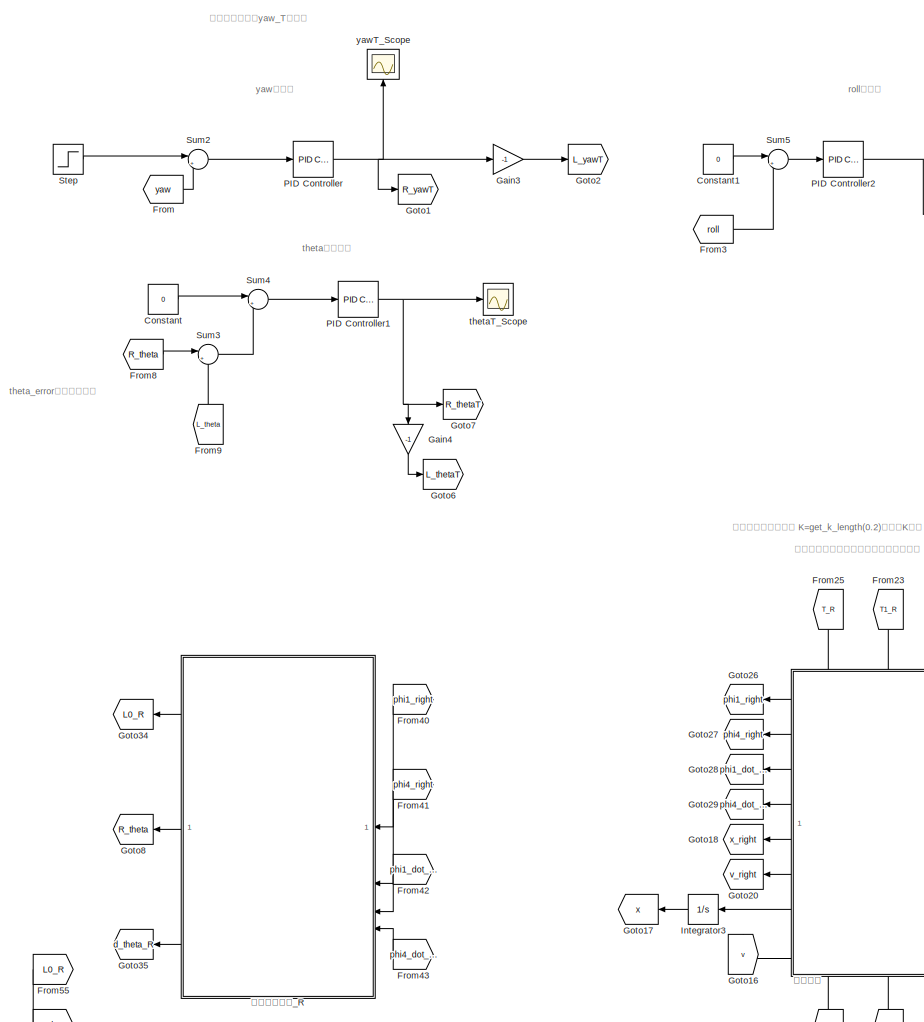
[diagram: root canvas - part 1/7, top left region]
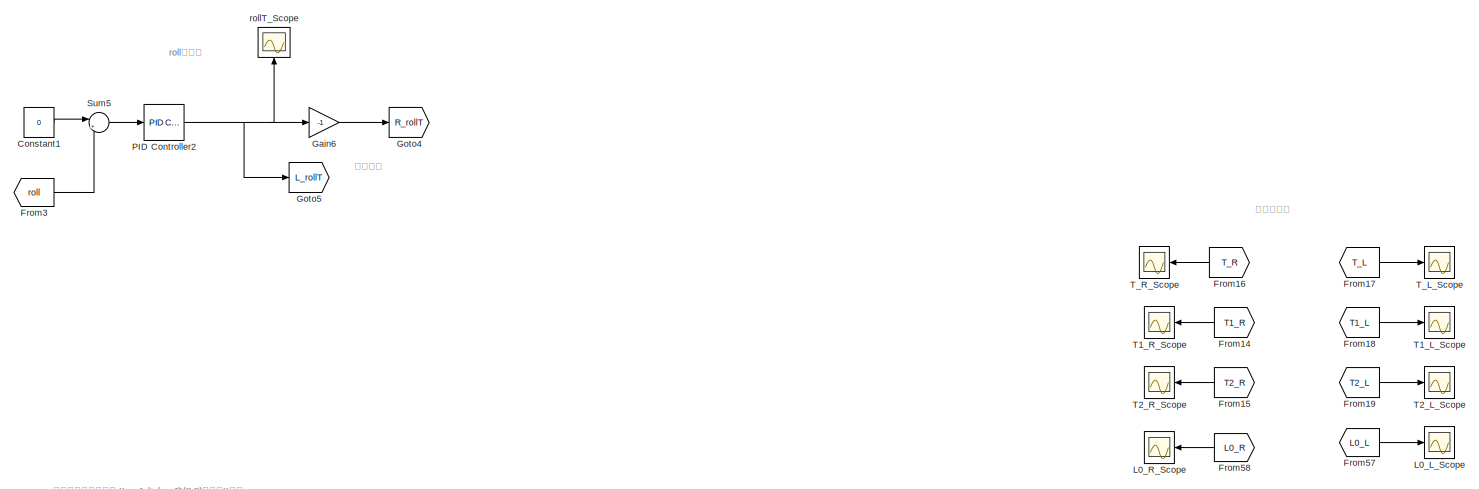
[diagram: root canvas - part 2/7, top left region]
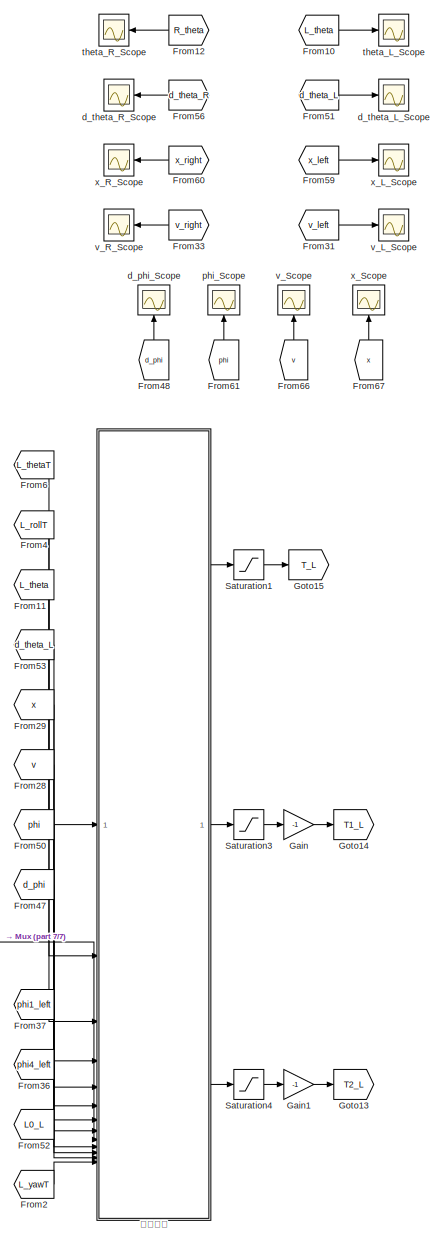
[diagram: root canvas - part 3/7, central region]
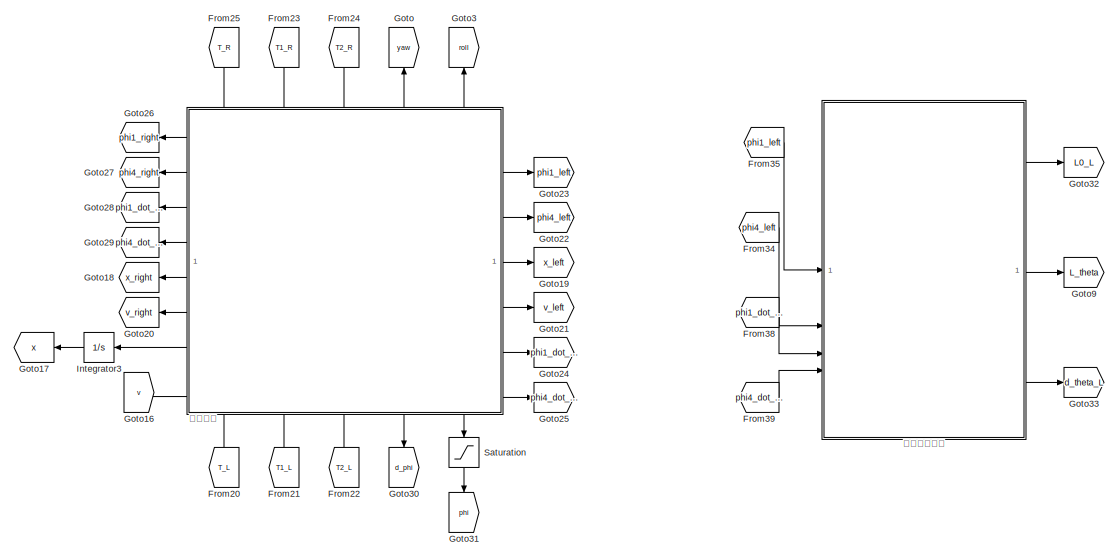
[diagram: root canvas - part 4/7, middle left region]
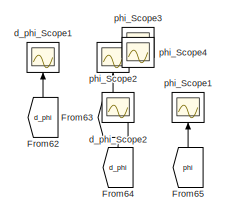
[diagram: root canvas - part 5/7, middle right region]
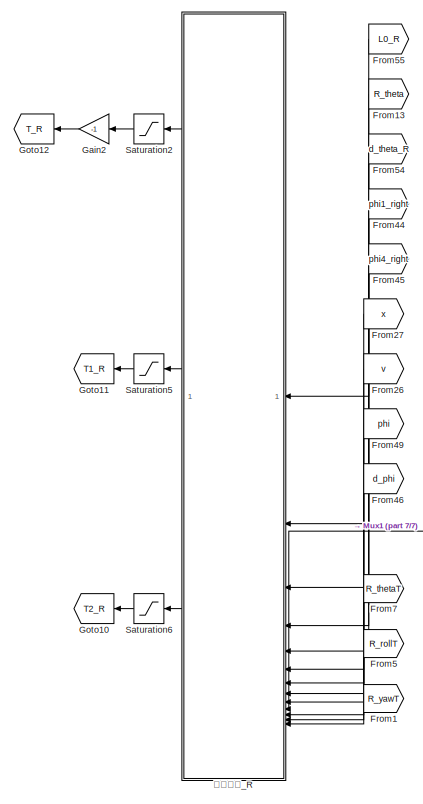
[diagram: root canvas - part 6/7, bottom left region]
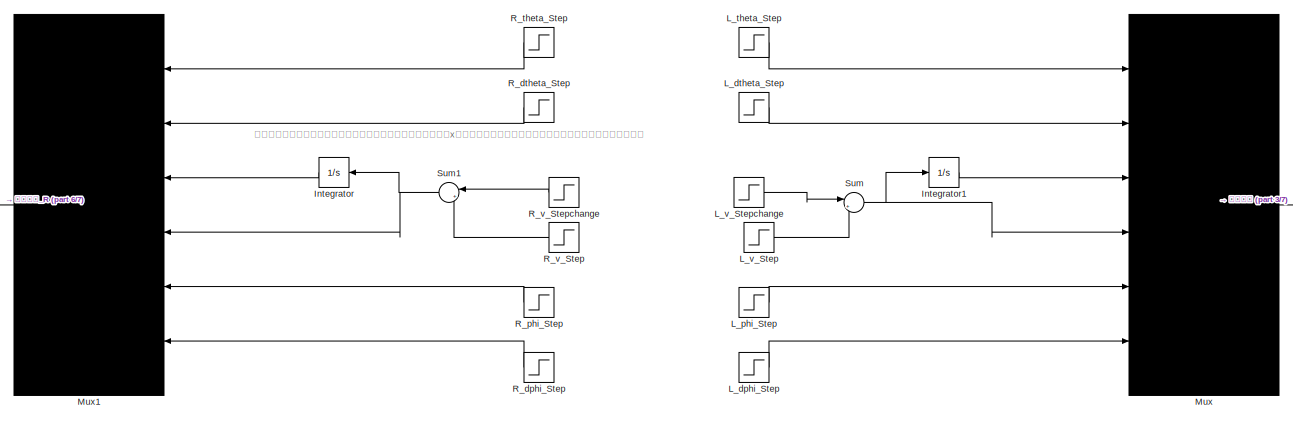
[diagram: root canvas - part 7/7, bottom left region]
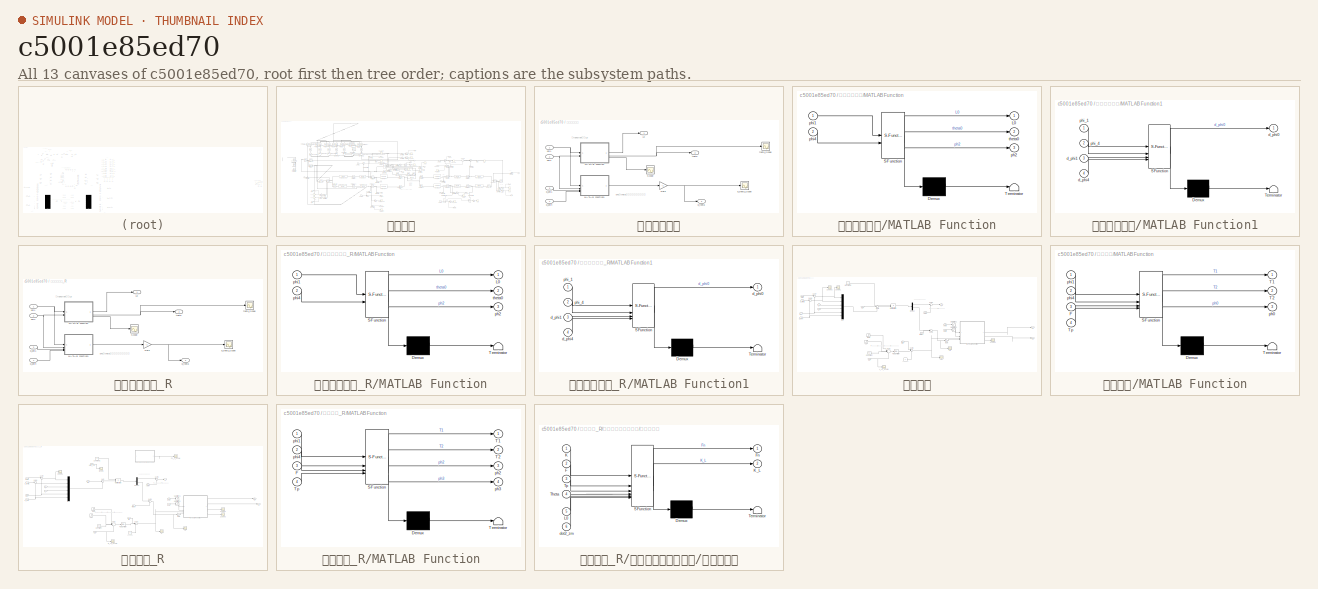
[diagram: thumbnail index - all 13 canvases of the model, root first then tree order]
MODEL slx_c5001e85ed70
KIND model
CONFIG AbsTol = auto
CONFIG EnableMultiTasking = off
CONFIG FixedStep = 0.0001
CONFIG MaxStep = auto
CONFIG MinStep = auto
CONFIG RelTol = 1e-3
CONFIG SampleTimeConstraint = Unconstrained
CONFIG SolverName = FixedStepAuto
CONFIG StartTime = 0.0
CONFIG StopTime = 10.0
BLOCK [Constant] Constant
  Value = 0
BLOCK [Constant] Constant1
  Value = 0
BLOCK [From] From
  GotoTag = yaw
BLOCK [From] From1
  GotoTag = R_yawT
  NameLocation = top
BLOCK [From] From10
  GotoTag = L_theta
BLOCK [From] From11
  GotoTag = L_theta
BLOCK [From] From12
  GotoTag = R_theta
  NameLocation = top
BLOCK [From] From13
  GotoTag = R_theta
  NameLocation = top
BLOCK [From] From14
  GotoTag = T1_R
BLOCK [From] From15
  GotoTag = T2_R
BLOCK [From] From16
  GotoTag = T_R
BLOCK [From] From17
  GotoTag = T_L
BLOCK [From] From18
  GotoTag = T1_L
BLOCK [From] From19
  GotoTag = T2_L
BLOCK [From] From2
  GotoTag = L_yawT
BLOCK [From] From20
  GotoTag = T_L
  NameLocation = right
BLOCK [From] From21
  GotoTag = T1_L
  NameLocation = right
BLOCK [From] From22
  GotoTag = T2_L
  NameLocation = right
BLOCK [From] From23
  GotoTag = T1_R
  NameLocation = right
BLOCK [From] From24
  GotoTag = T2_R
  NameLocation = right
BLOCK [From] From25
  GotoTag = T_R
  NameLocation = right
BLOCK [From] From26
  GotoTag = v
  NameLocation = top
BLOCK [From] From27
  GotoTag = x
BLOCK [From] From28
  GotoTag = v
  NameLocation = top
BLOCK [From] From29
  GotoTag = x
BLOCK [From] From3
  GotoTag = roll
BLOCK [From] From31
  GotoTag = v_left
BLOCK [From] From33
  GotoTag = v_right
BLOCK [From] From34
  GotoTag = phi4_left
BLOCK [From] From35
  GotoTag = phi1_left
BLOCK [From] From36
  GotoTag = phi4_left
BLOCK [From] From37
  GotoTag = phi1_left
BLOCK [From] From38
  GotoTag = phi1_dot_left
BLOCK [From] From39
  GotoTag = phi4_dot_left
BLOCK [From] From4
  GotoTag = L_rollT
BLOCK [From] From40
  GotoTag = phi1_right
BLOCK [From] From41
  GotoTag = phi4_right
BLOCK [From] From42
  GotoTag = phi1_dot_right
BLOCK [From] From43
  GotoTag = phi4_dot_right
BLOCK [From] From44
  GotoTag = phi1_right
BLOCK [From] From45
  GotoTag = phi4_right
BLOCK [From] From46
  GotoTag = d_phi
  NameLocation = top
BLOCK [From] From47
  GotoTag = d_phi
BLOCK [From] From48
  GotoTag = d_phi
  NameLocation = right
BLOCK [From] From49
  GotoTag = phi
  NameLocation = top
BLOCK [From] From5
  GotoTag = R_rollT
BLOCK [From] From50
  GotoTag = phi
BLOCK [From] From51
  GotoTag = d_theta_L
BLOCK [From] From52
  GotoTag = L0_L
BLOCK [From] From53
  GotoTag = d_theta_L
BLOCK [From] From54
  GotoTag = d_theta_R
BLOCK [From] From55
  GotoTag = L0_R
BLOCK [From] From56
  GotoTag = d_theta_R
BLOCK [From] From57
  GotoTag = L0_L
BLOCK [From] From58
  GotoTag = L0_R
BLOCK [From] From59
  GotoTag = x_left
BLOCK [From] From6
  GotoTag = L_thetaT
BLOCK [From] From60
  GotoTag = x_right
BLOCK [From] From61
  GotoTag = phi
  NameLocation = right
BLOCK [From] From62
  GotoTag = d_phi
  NameLocation = right
BLOCK [From] From63
  GotoTag = phi
  NameLocation = right
BLOCK [From] From64
  GotoTag = d_phi
  NameLocation = right
BLOCK [From] From65
  GotoTag = phi
  NameLocation = right
BLOCK [From] From66
  GotoTag = v
  NameLocation = right
BLOCK [From] From67
  GotoTag = x
  NameLocation = right
BLOCK [From] From7
  GotoTag = R_thetaT
BLOCK [From] From8
  GotoTag = R_theta
BLOCK [From] From9
  GotoTag = L_theta
  NameLocation = right
BLOCK [Gain] Gain
  Gain = -1
BLOCK [Gain] Gain1
  Gain = -1
BLOCK [Gain] Gain2
  Gain = -1
BLOCK [Gain] Gain3
  Gain = -1
BLOCK [Gain] Gain4
  Gain = -1
  NameLocation = left
BLOCK [Gain] Gain6
  Gain = -1
BLOCK [Goto] Goto
  GotoTag = yaw
  NameLocation = right
BLOCK [Goto] Goto1
  GotoTag = R_yawT
BLOCK [Goto] Goto10
  GotoTag = T2_R
  NameLocation = top
BLOCK [Goto] Goto11
  GotoTag = T1_R
  NameLocation = top
BLOCK [Goto] Goto12
  GotoTag = T_R
  NameLocation = top
BLOCK [Goto] Goto13
  GotoTag = T2_L
BLOCK [Goto] Goto14
  GotoTag = T1_L
BLOCK [Goto] Goto15
  GotoTag = T_L
BLOCK [Goto] Goto16
  GotoTag = v
  NameLocation = left
BLOCK [Goto] Goto17
  GotoTag = x
  NameLocation = top
BLOCK [Goto] Goto18
  GotoTag = x_right
BLOCK [Goto] Goto19
  GotoTag = x_left
BLOCK [Goto] Goto2
  GotoTag = L_yawT
BLOCK [Goto] Goto20
  GotoTag = v_right
BLOCK [Goto] Goto21
  GotoTag = v_left
BLOCK [Goto] Goto22
  GotoTag = phi4_left
BLOCK [Goto] Goto23
  GotoTag = phi1_left
BLOCK [Goto] Goto24
  GotoTag = phi1_dot_left
BLOCK [Goto] Goto25
  GotoTag = phi4_dot_left
BLOCK [Goto] Goto26
  GotoTag = phi1_right
BLOCK [Goto] Goto27
  GotoTag = phi4_right
BLOCK [Goto] Goto28
  GotoTag = phi1_dot_right
BLOCK [Goto] Goto29
  GotoTag = phi4_dot_right
BLOCK [Goto] Goto3
  GotoTag = roll
  NameLocation = right
BLOCK [Goto] Goto30
  GotoTag = d_phi
  NameLocation = left
BLOCK [Goto] Goto31
  GotoTag = phi
  NameLocation = left
BLOCK [Goto] Goto32
  GotoTag = L0_L
BLOCK [Goto] Goto33
  GotoTag = d_theta_L
BLOCK [Goto] Goto34
  GotoTag = L0_R
BLOCK [Goto] Goto35
  GotoTag = d_theta_R
BLOCK [Goto] Goto4
  GotoTag = R_rollT
BLOCK [Goto] Goto5
  GotoTag = L_rollT
BLOCK [Goto] Goto6
  GotoTag = L_thetaT
BLOCK [Goto] Goto7
  GotoTag = R_thetaT
BLOCK [Goto] Goto8
  GotoTag = R_theta
  NameLocation = top
BLOCK [Goto] Goto9
  GotoTag = L_theta
BLOCK [Integrator] Integrator
BLOCK [Integrator] Integrator1
BLOCK [Integrator] Integrator3
BLOCK [Scope] L0_L_Scope
  Floating = off
  NumInputPorts = 1
  ScopeSpecificationString = Simulink.scopes.TimeScopeBlockCfg('CurrentConfiguration', extmgr.ConfigurationSet(extmgr.Configuration('Core','General UI',true),extmgr.Configuration('Core','Source UI',true),extmgr.Configuration('Sources','WiredSimulink',true,'DataLoggingVariableName','ScopeData1'),extmgr.Configuration('Visuals','Time Domain',true,'SerializedDisplays',{struct('MinYLimReal','0.4024247','MaxYLimReal','0.4024303','Y...<+1382ch>
BLOCK [Scope] L0_R_Scope
  Floating = off
  NumInputPorts = 1
  ScopeSpecificationString = Simulink.scopes.TimeScopeBlockCfg('CurrentConfiguration', extmgr.ConfigurationSet(extmgr.Configuration('Core','General UI',true),extmgr.Configuration('Core','Source UI',true),extmgr.Configuration('Sources','WiredSimulink',true,'DataLoggingVariableName','ScopeData1'),extmgr.Configuration('Visuals','Time Domain',true,'SerializedDisplays',{struct('MinYLimReal','0.4024247','MaxYLimReal','0.4024303','Y...<+1382ch>
BLOCK [Step] L_dphi_Step
  After = 0
  SampleTime = 0
  Time = 0
BLOCK [Step] L_dtheta_Step
  After = 0
  SampleTime = 0
  Time = 0
BLOCK [Step] L_phi_Step
  After = 0
  SampleTime = 0
  Time = 0
BLOCK [Step] L_theta_Step
  After = 0
  SampleTime = 0
  Time = 0
BLOCK [Step] L_v_Step
  After = 1.2
  SampleTime = 0
  Time = 0.5
BLOCK [Step] L_v_Stepchange
  After = -1
  Commented = on
  SampleTime = 0
  Time = 6
BLOCK [Mux] Mux
  DisplayOption = bar
  Inputs = 6
BLOCK [Mux] Mux1
  DisplayOption = bar
  Inputs = 6
BLOCK [Reference] PID Controller  REF=slpidlib/PID Controller
  SourceBlock = slpidlib/PID Controller
  SourceType = PID 1dof
BLOCK [Reference] PID Controller1  REF=slpidlib/PID Controller
  SourceBlock = slpidlib/PID Controller
  SourceType = PID 1dof
BLOCK [Reference] PID Controller2  REF=slpidlib/PID Controller
  SourceBlock = slpidlib/PID Controller
  SourceType = PID 1dof
BLOCK [Step] R_dphi_Step
  After = 0
  SampleTime = 0
  Time = 0
BLOCK [Step] R_dtheta_Step
  After = 0
  SampleTime = 0
  Time = 0
BLOCK [Step] R_phi_Step
  After = 0
  SampleTime = 0
  Time = 0
BLOCK [Step] R_theta_Step
  After = 0
  SampleTime = 0
  Time = 0
BLOCK [Step] R_v_Step
  After = 1.2
  SampleTime = 0
  Time = 0.5
BLOCK [Step] R_v_Stepchange
  After = -1
  Commented = on
  SampleTime = 0
  Time = 6
BLOCK [Saturate] Saturation
  LowerLimit = -pi/2
  NameLocation = left
  UpperLimit = pi/2
BLOCK [Saturate] Saturation1
  LowerLimit = -10
  UpperLimit = 10
  ZeroCross = off
BLOCK [Saturate] Saturation2
  LowerLimit = -10
  UpperLimit = 10
BLOCK [Saturate] Saturation3
  LowerLimit = -100
  UpperLimit = 100
  ZeroCross = off
BLOCK [Saturate] Saturation4
  LowerLimit = -100
  UpperLimit = 100
  ZeroCross = off
BLOCK [Saturate] Saturation5
  LowerLimit = -100
  UpperLimit = 100
  ZeroCross = off
BLOCK [Saturate] Saturation6
  LowerLimit = -100
  UpperLimit = 100
  ZeroCross = off
BLOCK [Step] Step
  After = 0
  SampleTime = 0
  Time = 0.3
BLOCK [Sum] Sum
  Inputs = |++
BLOCK [Sum] Sum1
  Inputs = |++
BLOCK [Sum] Sum2
  Inputs = |+-
BLOCK [Sum] Sum3
  Inputs = |+-
BLOCK [Sum] Sum4
  Inputs = |+-
BLOCK [Sum] Sum5
  Inputs = |+-
BLOCK [Scope] T1_L_Scope
  Floating = off
  NumInputPorts = 1
  ScopeSpecificationString = Simulink.scopes.TimeScopeBlockCfg('CurrentConfiguration', extmgr.ConfigurationSet(extmgr.Configuration('Core','General UI',true),extmgr.Configuration('Core','Source UI',true),extmgr.Configuration('Sources','WiredSimulink',true,'DataLoggingVariableName','ScopeData7'),extmgr.Configuration('Visuals','Time Domain',true,'SerializedDisplays',{struct('MinYLimReal','-11.70026','MaxYLimReal','12.55419','YL...<+1593ch>
BLOCK [Scope] T1_R_Scope
  Floating = off
  NumInputPorts = 1
  ScopeSpecificationString = Simulink.scopes.TimeScopeBlockCfg('CurrentConfiguration', extmgr.ConfigurationSet(extmgr.Configuration('Core','General UI',true,'FigureColor',[1 1 1]),extmgr.Configuration('Core','Source UI',true),extmgr.Configuration('Sources','WiredSimulink',true,'DataLoggingVariableName','ScopeData2'),extmgr.Configuration('Visuals','Time Domain',true,'SerializedDisplays',{struct('MinYLimReal','-10.01213','MaxYL...<+1599ch>
BLOCK [Scope] T2_L_Scope
  Floating = off
  NumInputPorts = 1
  ScopeSpecificationString = Simulink.scopes.TimeScopeBlockCfg('CurrentConfiguration', extmgr.ConfigurationSet(extmgr.Configuration('Core','General UI',true),extmgr.Configuration('Core','Source UI',true),extmgr.Configuration('Sources','WiredSimulink',true,'DataLoggingVariableName','ScopeData2'),extmgr.Configuration('Visuals','Time Domain',true,'SerializedDisplays',{struct('MinYLimReal','-12.67995','MaxYLimReal','11.71728','YL...<+1533ch>
BLOCK [Scope] T2_R_Scope
  Floating = off
  NumInputPorts = 1
  ScopeSpecificationString = Simulink.scopes.TimeScopeBlockCfg('CurrentConfiguration', extmgr.ConfigurationSet(extmgr.Configuration('Core','General UI',true),extmgr.Configuration('Core','Source UI',true),extmgr.Configuration('Sources','WiredSimulink',true,'DataLoggingVariableName','ScopeData3'),extmgr.Configuration('Visuals','Time Domain',true,'SerializedDisplays',{struct('MinYLimReal','-13.21165','MaxYLimReal','11.83558','YL...<+1577ch>
BLOCK [Scope] T_L_Scope
  Floating = off
  NumInputPorts = 1
  ScopeSpecificationString = Simulink.scopes.TimeScopeBlockCfg('CurrentConfiguration', extmgr.ConfigurationSet(extmgr.Configuration('Core','General UI',true),extmgr.Configuration('Core','Source UI',true),extmgr.Configuration('Sources','WiredSimulink',true,'DataLoggingVariableName','ScopeData4'),extmgr.Configuration('Visuals','Time Domain',true,'SerializedDisplays',{struct('MinYLimReal','-0.55675','MaxYLimReal','0.37657','YLab...<+1676ch>
BLOCK [Scope] T_R_Scope
  Floating = off
  NumInputPorts = 1
  ScopeSpecificationString = Simulink.scopes.TimeScopeBlockCfg('CurrentConfiguration', extmgr.ConfigurationSet(extmgr.Configuration('Core','General UI',true,'FigureColor',[1 1 1]),extmgr.Configuration('Core','Source UI',true),extmgr.Configuration('Sources','WiredSimulink',true,'DataLoggingVariableName','ScopeData1'),extmgr.Configuration('Visuals','Time Domain',true,'SerializedDisplays',{struct('MinYLimReal','-3.44053','MaxYLi...<+1574ch>
BLOCK [Scope] d_phi_Scope
  Floating = off
  NameLocation = top
  NumInputPorts = 1
  ScopeSpecificationString = Simulink.scopes.TimeScopeBlockCfg('CurrentConfiguration', extmgr.ConfigurationSet(extmgr.Configuration('Core','General UI',true),extmgr.Configuration('Core','Source UI',true),extmgr.Configuration('Sources','WiredSimulink',true,'DataLoggingVariableName','ScopeData5'),extmgr.Configuration('Visuals','Time Domain',true,'SerializedDisplays',{struct('MinYLimReal','-1.01371','MaxYLimReal','1.23267','YLab...<+1384ch>
BLOCK [Scope] d_phi_Scope1
  Floating = off
  NameLocation = top
  NumInputPorts = 1
  ScopeSpecificationString = Simulink.scopes.TimeScopeBlockCfg('CurrentConfiguration', extmgr.ConfigurationSet(extmgr.Configuration('Core','General UI',true),extmgr.Configuration('Core','Source UI',true),extmgr.Configuration('Sources','WiredSimulink',true,'DataLoggingVariableName','ScopeData3'),extmgr.Configuration('Visuals','Time Domain',true,'SerializedDisplays',{struct('MinYLimReal','-1.01371','MaxYLimReal','1.23267','YLab...<+1384ch>
BLOCK [Scope] d_phi_Scope2
  Floating = off
  NameLocation = top
  NumInputPorts = 1
  ScopeSpecificationString = Simulink.scopes.TimeScopeBlockCfg('CurrentConfiguration', extmgr.ConfigurationSet(extmgr.Configuration('Core','General UI',true),extmgr.Configuration('Core','Source UI',true),extmgr.Configuration('Sources','WiredSimulink',true,'DataLoggingVariableName','ScopeData5'),extmgr.Configuration('Visuals','Time Domain',true,'SerializedDisplays',{struct('MinYLimReal','-1.01371','MaxYLimReal','1.23267','YLab...<+1384ch>
BLOCK [Scope] d_theta_L_Scope
  Floating = off
  NumInputPorts = 1
  ScopeSpecificationString = Simulink.scopes.TimeScopeBlockCfg('CurrentConfiguration', extmgr.ConfigurationSet(extmgr.Configuration('Core','General UI',true),extmgr.Configuration('Core','Source UI',true),extmgr.Configuration('Sources','WiredSimulink',true,'DataLoggingVariableName','ScopeData3'),extmgr.Configuration('Visuals','Time Domain',true,'SerializedDisplays',{struct('MinYLimReal','-34.25652','MaxYLimReal','39.53958','YL...<+1473ch>
BLOCK [Scope] d_theta_R_Scope
  Floating = off
  NumInputPorts = 1
  ScopeSpecificationString = Simulink.scopes.TimeScopeBlockCfg('CurrentConfiguration', extmgr.ConfigurationSet(extmgr.Configuration('Core','General UI',true),extmgr.Configuration('Core','Source UI',true),extmgr.Configuration('Sources','WiredSimulink',true,'DataLoggingVariableName','ScopeData6'),extmgr.Configuration('Visuals','Time Domain',true,'SerializedDisplays',{struct('MinYLimReal','-5.728','MaxYLimReal','8.20564','YLabel...<+1439ch>
BLOCK [Scope] phi_Scope
  Floating = off
  NameLocation = top
  NumInputPorts = 1
  ScopeSpecificationString = Simulink.scopes.TimeScopeBlockCfg('CurrentConfiguration', extmgr.ConfigurationSet(extmgr.Configuration('Core','General UI',true,'FigureColor',[1 1 1]),extmgr.Configuration('Core','Source UI',true),extmgr.Configuration('Sources','WiredSimulink',true,'DataLoggingVariableName','ScopeData2'),extmgr.Configuration('Visuals','Time Domain',true,'SerializedDisplays',{struct('MinYLimReal','-0.06959','MaxYLi...<+1591ch>
BLOCK [Scope] phi_Scope1
  Floating = off
  NameLocation = top
  NumInputPorts = 1
  ScopeSpecificationString = Simulink.scopes.TimeScopeBlockCfg('CurrentConfiguration', extmgr.ConfigurationSet(extmgr.Configuration('Core','General UI',true),extmgr.Configuration('Core','Source UI',true),extmgr.Configuration('Sources','WiredSimulink',true,'DataLoggingVariableName','ScopeData6'),extmgr.Configuration('Visuals','Time Domain',true,'SerializedDisplays',{struct('MinYLimReal','-1.01371','MaxYLimReal','1.23267','YLab...<+1384ch>
BLOCK [Scope] phi_Scope2
  Floating = off
  NameLocation = top
  NumInputPorts = 1
  ScopeSpecificationString = Simulink.scopes.TimeScopeBlockCfg('CurrentConfiguration', extmgr.ConfigurationSet(extmgr.Configuration('Core','General UI',true),extmgr.Configuration('Core','Source UI',true),extmgr.Configuration('Sources','WiredSimulink',true,'DataLoggingVariableName','ScopeData4'),extmgr.Configuration('Visuals','Time Domain',true,'SerializedDisplays',{struct('MinYLimReal','-1.01371','MaxYLimReal','1.23267','YLab...<+1384ch>
BLOCK [Scope] phi_Scope3
  Floating = off
  NameLocation = top
  NumInputPorts = 1
  ScopeSpecificationString = Simulink.scopes.TimeScopeBlockCfg('CurrentConfiguration', extmgr.ConfigurationSet(extmgr.Configuration('Core','General UI',true),extmgr.Configuration('Core','Source UI',true),extmgr.Configuration('Sources','WiredSimulink',true,'DataLoggingVariableName','ScopeData7'),extmgr.Configuration('Visuals','Time Domain',true,'SerializedDisplays',{struct('MinYLimReal','-1.01371','MaxYLimReal','1.23267','YLab...<+1384ch>
BLOCK [Scope] phi_Scope4
  Floating = off
  NameLocation = top
  NumInputPorts = 1
  ScopeSpecificationString = Simulink.scopes.TimeScopeBlockCfg('CurrentConfiguration', extmgr.ConfigurationSet(extmgr.Configuration('Core','General UI',true),extmgr.Configuration('Core','Source UI',true),extmgr.Configuration('Sources','WiredSimulink',true,'DataLoggingVariableName','ScopeData8'),extmgr.Configuration('Visuals','Time Domain',true,'SerializedDisplays',{struct('MinYLimReal','-1.01371','MaxYLimReal','1.23267','YLab...<+1384ch>
BLOCK [Scope] rollT_Scope
  Floating = off
  NameLocation = right
  NumInputPorts = 1
  ScopeSpecificationString = Simulink.scopes.TimeScopeBlockCfg('CurrentConfiguration', extmgr.ConfigurationSet(extmgr.Configuration('Core','General UI',true),extmgr.Configuration('Core','Source UI',true),extmgr.Configuration('Sources','WiredSimulink',true,'DataLoggingVariableName','ScopeData5'),extmgr.Configuration('Visuals','Time Domain',true,'SerializedDisplays',{struct('MinYLimReal','-181.27711','MaxYLimReal','260.57985','...<+1564ch>
BLOCK [Scope] thetaT_Scope
  Floating = off
  NumInputPorts = 1
  ScopeSpecificationString = Simulink.scopes.TimeScopeBlockCfg('CurrentConfiguration', extmgr.ConfigurationSet(extmgr.Configuration('Core','General UI',true),extmgr.Configuration('Core','Source UI',true),extmgr.Configuration('Sources','WiredSimulink',true,'DataLoggingVariableName','ScopeData4'),extmgr.Configuration('Visuals','Time Domain',true,'SerializedDisplays',{struct('MinYLimReal','-8.74231','MaxYLimReal','6.60744','YLab...<+1550ch>
BLOCK [Scope] theta_L_Scope
  Floating = off
  NumInputPorts = 1
  ScopeSpecificationString = Simulink.scopes.TimeScopeBlockCfg('CurrentConfiguration', extmgr.ConfigurationSet(extmgr.Configuration('Core','General UI',true),extmgr.Configuration('Core','Source UI',true),extmgr.Configuration('Sources','WiredSimulink',true),extmgr.Configuration('Visuals','Time Domain',true,'SerializedDisplays',{struct('MinYLimReal','-2.24851','MaxYLimReal','5.48146','YLabelReal','','MinYLimMag','0.00000','MaxY...<+1542ch>
BLOCK [Scope] theta_R_Scope
  Floating = off
  NumInputPorts = 1
  ScopeSpecificationString = Simulink.scopes.TimeScopeBlockCfg('CurrentConfiguration', extmgr.ConfigurationSet(extmgr.Configuration('Core','General UI',true,'FigureColor',[1 1 1]),extmgr.Configuration('Core','Source UI',true),extmgr.Configuration('Sources','WiredSimulink',true,'DataLoggingVariableName','ScopeData4'),extmgr.Configuration('Visuals','Time Domain',true,'SerializedDisplays',{struct('MinYLimReal','-0.11434','MaxYLi...<+1577ch>
BLOCK [Scope] v_L_Scope
  Floating = off
  NumInputPorts = 1
  ScopeSpecificationString = Simulink.scopes.TimeScopeBlockCfg('CurrentConfiguration', extmgr.ConfigurationSet(extmgr.Configuration('Core','General UI',true,'FigureColor',[1 1 1]),extmgr.Configuration('Core','Source UI',true),extmgr.Configuration('Sources','WiredSimulink',true,'DataLoggingVariableName','ScopeData9'),extmgr.Configuration('Visuals','Time Domain',true,'SerializedDisplays',{struct('MinYLimReal','-1.38523','MaxYLi...<+1571ch>
BLOCK [Scope] v_R_Scope
  Floating = off
  NumInputPorts = 1
  ScopeSpecificationString = Simulink.scopes.TimeScopeBlockCfg('CurrentConfiguration', extmgr.ConfigurationSet(extmgr.Configuration('Core','General UI',true),extmgr.Configuration('Core','Source UI',true),extmgr.Configuration('Sources','WiredSimulink',true,'DataLoggingVariableName','ScopeData8'),extmgr.Configuration('Visuals','Time Domain',true,'SerializedDisplays',{struct('MinYLimReal','-45.33332','MaxYLimReal','50.10209','YL...<+1472ch>
BLOCK [Scope] v_Scope
  Floating = off
  NameLocation = top
  NumInputPorts = 1
  ScopeSpecificationString = Simulink.scopes.TimeScopeBlockCfg('CurrentConfiguration', extmgr.ConfigurationSet(extmgr.Configuration('Core','General UI',true),extmgr.Configuration('Core','Source UI',true),extmgr.Configuration('Sources','WiredSimulink',true,'DataLoggingVariableName','ScopeData9'),extmgr.Configuration('Visuals','Time Domain',true,'SerializedDisplays',{struct('MinYLimReal','-0.794','MaxYLimReal','1.21022','YLabel...<+1538ch>
BLOCK [Scope] x_L_Scope
  Floating = off
  NumInputPorts = 1
  ScopeSpecificationString = Simulink.scopes.TimeScopeBlockCfg('CurrentConfiguration', extmgr.ConfigurationSet(extmgr.Configuration('Core','General UI',true),extmgr.Configuration('Core','Source UI',true),extmgr.Configuration('Sources','WiredSimulink',true,'DataLoggingVariableName','ScopeData8'),extmgr.Configuration('Visuals','Time Domain',true,'SerializedDisplays',{struct('MinYLimReal','-1.84304','MaxYLimReal','15.85058','YLa...<+1498ch>
BLOCK [Scope] x_R_Scope
  Floating = off
  NumInputPorts = 1
  ScopeSpecificationString = Simulink.scopes.TimeScopeBlockCfg('CurrentConfiguration', extmgr.ConfigurationSet(extmgr.Configuration('Core','General UI',true),extmgr.Configuration('Core','Source UI',true),extmgr.Configuration('Sources','WiredSimulink',true,'DataLoggingVariableName','ScopeData9'),extmgr.Configuration('Visuals','Time Domain',true,'SerializedDisplays',{struct('MinYLimReal','-0.03058','MaxYLimReal','0.09149','YLab...<+1414ch>
BLOCK [Scope] x_Scope
  Floating = off
  NameLocation = top
  NumInputPorts = 1
  ScopeSpecificationString = Simulink.scopes.TimeScopeBlockCfg('CurrentConfiguration', extmgr.ConfigurationSet(extmgr.Configuration('Core','General UI',true),extmgr.Configuration('Core','Source UI',true),extmgr.Configuration('Sources','WiredSimulink',true,'DataLoggingVariableName','ScopeData10'),extmgr.Configuration('Visuals','Time Domain',true,'SerializedDisplays',{struct('MinYLimReal','-1.70844','MaxYLimReal','15.36539','YL...<+1443ch>
BLOCK [Scope] yawT_Scope
  Floating = off
  NameLocation = right
  NumInputPorts = 1
  ScopeSpecificationString = Simulink.scopes.TimeScopeBlockCfg('CurrentConfiguration', extmgr.ConfigurationSet(extmgr.Configuration('Core','General UI',true),extmgr.Configuration('Core','Source UI',true),extmgr.Configuration('Sources','WiredSimulink',true,'DataLoggingVariableName','ScopeData3'),extmgr.Configuration('Visuals','Time Domain',true,'SerializedDisplays',{struct('MinYLimReal','-3.52623','MaxYLimReal','7.02367','YLab...<+1681ch>
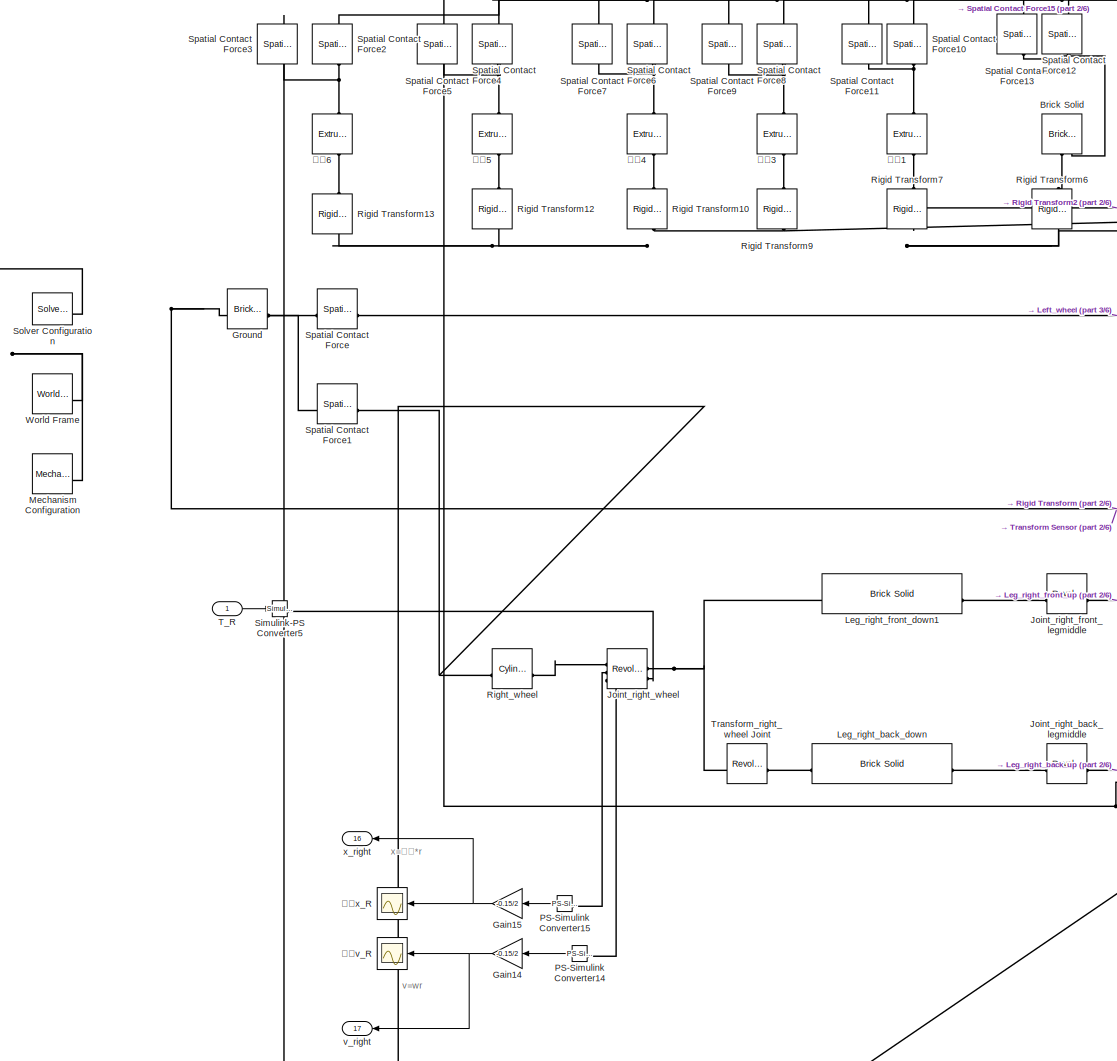
[diagram: 机体模型 - part 1/6, middle left region]
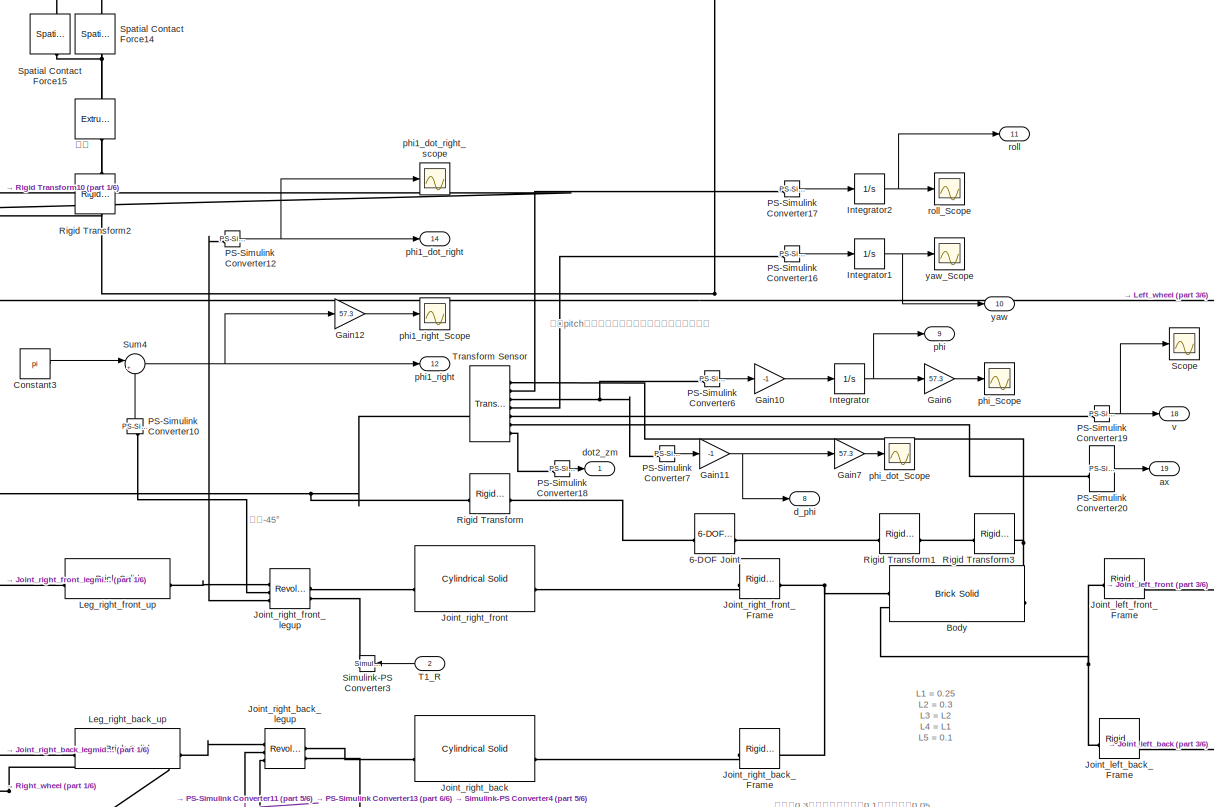
[diagram: 机体模型 - part 2/6, central region]
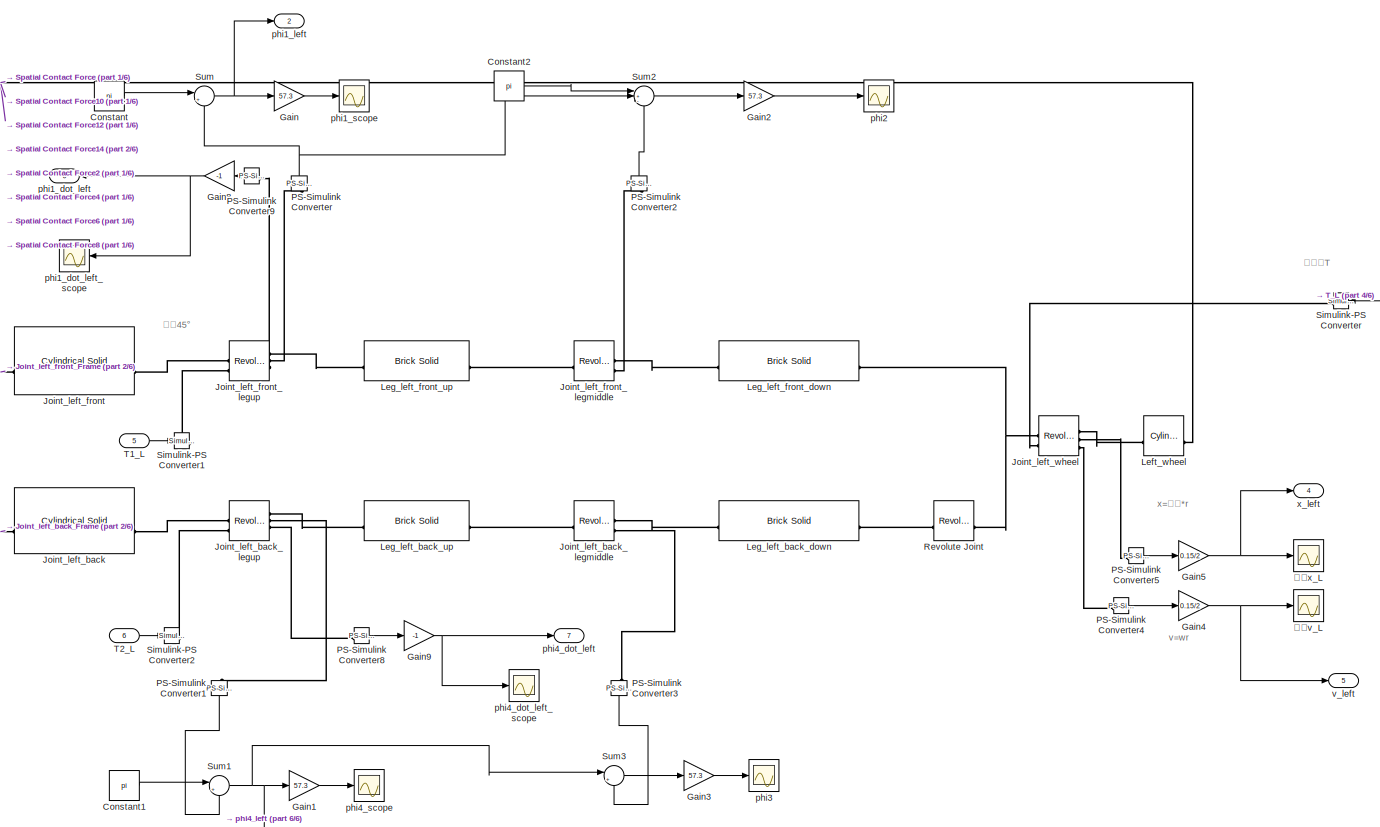
[diagram: 机体模型 - part 3/6, middle right region]
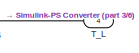
[diagram: 机体模型 - part 4/6, middle right region]
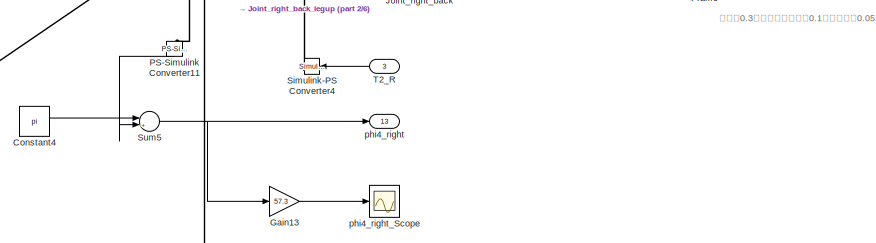
[diagram: 机体模型 - part 5/6, bottom center region]
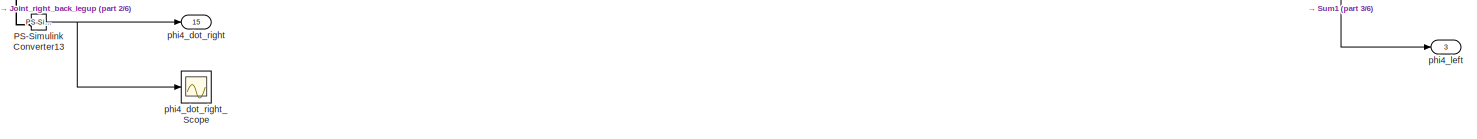
[diagram: 机体模型 - part 6/6, bottom center region]
BLOCK [SubSystem] 机体模型
  PortSchema = {"entries":[{"content":{"sides":[{"content":{"connectorIds":["Out12","Out13","Out14","Out15","Out16","Out17","Out18","Out19"]},"type":"ConnectorPlacement.EquallySpacedRectSide","uuid":"4be4cf3c-8d4a-439d-b5cb-06ad5eef59d8"},{"content":{"connectorIds":["Out1","Out2","Out3","Out4","Out5","Out6","Out7"],"side":"RIGHT"},"type":"ConnectorPlacement.EquallySpacedRectSide","uuid":"9f385abe-4754-448e-b1c2-...<+548ch>
BLOCK [Reference] 机体模型/6-DOF Joint  REF=sm_lib/Joints/6-DOF Joint
  SourceBlock = sm_lib/Joints/6-DOF Joint
  SourceType = 6-DOF Joint
BLOCK [Reference] 机体模型/Body  REF=sm_lib/Body Elements/Brick Solid
  SourceBlock = sm_lib/Body Elements/Brick Solid
  SourceType = Brick Solid
BLOCK [Reference] 机体模型/Brick Solid  REF=sm_lib/Body Elements/Brick Solid
  NameLocation = right
  SourceBlock = sm_lib/Body Elements/Brick Solid
  SourceType = Brick Solid
BLOCK [Constant] 机体模型/Constant
  Value = pi
BLOCK [Constant] 机体模型/Constant1
  Value = pi
BLOCK [Constant] 机体模型/Constant2
  Value = pi
BLOCK [Constant] 机体模型/Constant3
  Value = pi
BLOCK [Constant] 机体模型/Constant4
  Value = pi
BLOCK [Gain] 机体模型/Gain
  Gain = 57.3
BLOCK [Gain] 机体模型/Gain1
  Gain = 57.3
BLOCK [Gain] 机体模型/Gain10
  Gain = -1
BLOCK [Gain] 机体模型/Gain11
  Gain = -1
BLOCK [Gain] 机体模型/Gain12
  Gain = 57.3
BLOCK [Gain] 机体模型/Gain13
  Gain = 57.3
BLOCK [Gain] 机体模型/Gain14
  Gain = -0.15/2
BLOCK [Gain] 机体模型/Gain15
  Gain = -0.15/2
BLOCK [Gain] 机体模型/Gain2
  Gain = 57.3
BLOCK [Gain] 机体模型/Gain3
  Gain = 57.3
BLOCK [Gain] 机体模型/Gain4
  Gain = 0.15/2
BLOCK [Gain] 机体模型/Gain5
  Gain = 0.15/2
BLOCK [Gain] 机体模型/Gain6
  Gain = 57.3
BLOCK [Gain] 机体模型/Gain7
  Gain = 57.3
BLOCK [Gain] 机体模型/Gain8
  Gain = -1
BLOCK [Gain] 机体模型/Gain9
  Gain = -1
BLOCK [Reference] 机体模型/Ground  REF=sm_lib/Body Elements/Brick Solid
  NameLocation = top
  SourceBlock = sm_lib/Body Elements/Brick Solid
  SourceType = Brick Solid
BLOCK [Integrator] 机体模型/Integrator
BLOCK [Integrator] 机体模型/Integrator1
BLOCK [Integrator] 机体模型/Integrator2
BLOCK [Reference] 机体模型/Joint_left_back  REF=sm_lib/Body Elements/Cylindrical Solid
  SourceBlock = sm_lib/Body Elements/Cylindrical Solid
  SourceType = Cylindrical Solid
BLOCK [Reference] 机体模型/Joint_left_back_Frame  REF=sm_lib/Frames and
Transforms/Rigid
Transform
  SourceBlock = sm_lib/Frames and\nTransforms/Rigid\nTransform
  SourceType = Rigid\nTransform
BLOCK [Reference] 机体模型/Joint_left_back_legmiddle  REF=sm_lib/Joints/Revolute Joint
  SourceBlock = sm_lib/Joints/Revolute Joint
  SourceType = Revolute Joint
BLOCK [Reference] 机体模型/Joint_left_back_legup  REF=sm_lib/Joints/Revolute Joint
  SourceBlock = sm_lib/Joints/Revolute Joint
  SourceType = Revolute Joint
BLOCK [Reference] 机体模型/Joint_left_front  REF=sm_lib/Body Elements/Cylindrical Solid
  SourceBlock = sm_lib/Body Elements/Cylindrical Solid
  SourceType = Cylindrical Solid
BLOCK [Reference] 机体模型/Joint_left_front_Frame  REF=sm_lib/Frames and
Transforms/Rigid
Transform
  SourceBlock = sm_lib/Frames and\nTransforms/Rigid\nTransform
  SourceType = Rigid\nTransform
BLOCK [Reference] 机体模型/Joint_left_front_legmiddle  REF=sm_lib/Joints/Revolute Joint
  SourceBlock = sm_lib/Joints/Revolute Joint
  SourceType = Revolute Joint
BLOCK [Reference] 机体模型/Joint_left_front_legup  REF=sm_lib/Joints/Revolute Joint
  SourceBlock = sm_lib/Joints/Revolute Joint
  SourceType = Revolute Joint
BLOCK [Reference] 机体模型/Joint_left_wheel  REF=sm_lib/Joints/Revolute Joint
  SourceBlock = sm_lib/Joints/Revolute Joint
  SourceType = Revolute Joint
BLOCK [Reference] 机体模型/Joint_right_back  REF=sm_lib/Body Elements/Cylindrical Solid
  SourceBlock = sm_lib/Body Elements/Cylindrical Solid
  SourceType = Cylindrical Solid
BLOCK [Reference] 机体模型/Joint_right_back_Frame  REF=sm_lib/Frames and
Transforms/Rigid
Transform
  SourceBlock = sm_lib/Frames and\nTransforms/Rigid\nTransform
  SourceType = Rigid\nTransform
BLOCK [Reference] 机体模型/Joint_right_back_legmiddle  REF=sm_lib/Joints/Revolute Joint
  SourceBlock = sm_lib/Joints/Revolute Joint
  SourceType = Revolute Joint
BLOCK [Reference] 机体模型/Joint_right_back_legup  REF=sm_lib/Joints/Revolute Joint
  SourceBlock = sm_lib/Joints/Revolute Joint
  SourceType = Revolute Joint
BLOCK [Reference] 机体模型/Joint_right_front  REF=sm_lib/Body Elements/Cylindrical Solid
  SourceBlock = sm_lib/Body Elements/Cylindrical Solid
  SourceType = Cylindrical Solid
BLOCK [Reference] 机体模型/Joint_right_front_Frame  REF=sm_lib/Frames and
Transforms/Rigid
Transform
  SourceBlock = sm_lib/Frames and\nTransforms/Rigid\nTransform
  SourceType = Rigid\nTransform
BLOCK [Reference] 机体模型/Joint_right_front_legmiddle  REF=sm_lib/Joints/Revolute Joint
  SourceBlock = sm_lib/Joints/Revolute Joint
  SourceType = Revolute Joint
BLOCK [Reference] 机体模型/Joint_right_front_legup  REF=sm_lib/Joints/Revolute Joint
  SourceBlock = sm_lib/Joints/Revolute Joint
  SourceType = Revolute Joint
BLOCK [Reference] 机体模型/Joint_right_wheel  REF=sm_lib/Joints/Revolute Joint
  SourceBlock = sm_lib/Joints/Revolute Joint
  SourceType = Revolute Joint
BLOCK [Reference] 机体模型/Left_wheel  REF=sm_lib/Body Elements/Cylindrical Solid
  SourceBlock = sm_lib/Body Elements/Cylindrical Solid
  SourceType = Cylindrical Solid
BLOCK [Reference] 机体模型/Leg_left_back_down  REF=sm_lib/Body Elements/Brick Solid
  SourceBlock = sm_lib/Body Elements/Brick Solid
  SourceType = Brick Solid
BLOCK [Reference] 机体模型/Leg_left_back_up  REF=sm_lib/Body Elements/Brick Solid
  SourceBlock = sm_lib/Body Elements/Brick Solid
  SourceType = Brick Solid
BLOCK [Reference] 机体模型/Leg_left_front_down  REF=sm_lib/Body Elements/Brick Solid
  SourceBlock = sm_lib/Body Elements/Brick Solid
  SourceType = Brick Solid
BLOCK [Reference] 机体模型/Leg_left_front_up  REF=sm_lib/Body Elements/Brick Solid
  SourceBlock = sm_lib/Body Elements/Brick Solid
  SourceType = Brick Solid
BLOCK [Reference] 机体模型/Leg_right_back_down  REF=sm_lib/Body Elements/Brick Solid
  SourceBlock = sm_lib/Body Elements/Brick Solid
  SourceType = Brick Solid
BLOCK [Reference] 机体模型/Leg_right_back_up  REF=sm_lib/Body Elements/Brick Solid
  SourceBlock = sm_lib/Body Elements/Brick Solid
  SourceType = Brick Solid
BLOCK [Reference] 机体模型/Leg_right_front_down1  REF=sm_lib/Body Elements/Brick Solid
  SourceBlock = sm_lib/Body Elements/Brick Solid
  SourceType = Brick Solid
BLOCK [Reference] 机体模型/Leg_right_front_up  REF=sm_lib/Body Elements/Brick Solid
  SourceBlock = sm_lib/Body Elements/Brick Solid
  SourceType = Brick Solid
BLOCK [Reference] 机体模型/Mechanism Configuration  REF=sm_lib/Utilities/Mechanism
Configuration
  SourceBlock = sm_lib/Utilities/Mechanism\nConfiguration
  SourceType = Mechanism\nConfiguration
BLOCK [Reference] 机体模型/PS-Simulink Converter  REF=nesl_utility/PS-Simulink
Converter
  NameLocation = right
  SourceBlock = nesl_utility/PS-Simulink\nConverter
  SourceType = PS-Simulink\nConverter
BLOCK [Reference] 机体模型/PS-Simulink Converter1  REF=nesl_utility/PS-Simulink
Converter
  NameLocation = left
  SourceBlock = nesl_utility/PS-Simulink\nConverter
  SourceType = PS-Simulink\nConverter
BLOCK [Reference] 机体模型/PS-Simulink Converter10  REF=nesl_utility/PS-Simulink
Converter
  NameLocation = right
  SourceBlock = nesl_utility/PS-Simulink\nConverter
  SourceType = PS-Simulink\nConverter
BLOCK [Reference] 机体模型/PS-Simulink Converter11  REF=nesl_utility/PS-Simulink
Converter
  NameLocation = left
  SourceBlock = nesl_utility/PS-Simulink\nConverter
  SourceType = PS-Simulink\nConverter
BLOCK [Reference] 机体模型/PS-Simulink Converter12  REF=nesl_utility/PS-Simulink
Converter
  SourceBlock = nesl_utility/PS-Simulink\nConverter
  SourceType = PS-Simulink\nConverter
BLOCK [Reference] 机体模型/PS-Simulink Converter13  REF=nesl_utility/PS-Simulink
Converter
  SourceBlock = nesl_utility/PS-Simulink\nConverter
  SourceType = PS-Simulink\nConverter
BLOCK [Reference] 机体模型/PS-Simulink Converter14  REF=nesl_utility/PS-Simulink
Converter
  SourceBlock = nesl_utility/PS-Simulink\nConverter
  SourceType = PS-Simulink\nConverter
BLOCK [Reference] 机体模型/PS-Simulink Converter15  REF=nesl_utility/PS-Simulink
Converter
  SourceBlock = nesl_utility/PS-Simulink\nConverter
  SourceType = PS-Simulink\nConverter
BLOCK [Reference] 机体模型/PS-Simulink Converter16  REF=nesl_utility/PS-Simulink
Converter
  SourceBlock = nesl_utility/PS-Simulink\nConverter
  SourceType = PS-Simulink\nConverter
BLOCK [Reference] 机体模型/PS-Simulink Converter17  REF=nesl_utility/PS-Simulink
Converter
  SourceBlock = nesl_utility/PS-Simulink\nConverter
  SourceType = PS-Simulink\nConverter
BLOCK [Reference] 机体模型/PS-Simulink Converter18  REF=nesl_utility/PS-Simulink
Converter
  SourceBlock = nesl_utility/PS-Simulink\nConverter
  SourceType = PS-Simulink\nConverter
BLOCK [Reference] 机体模型/PS-Simulink Converter19  REF=nesl_utility/PS-Simulink
Converter
  SourceBlock = nesl_utility/PS-Simulink\nConverter
  SourceType = PS-Simulink\nConverter
BLOCK [Reference] 机体模型/PS-Simulink Converter2  REF=nesl_utility/PS-Simulink
Converter
  NameLocation = right
  SourceBlock = nesl_utility/PS-Simulink\nConverter
  SourceType = PS-Simulink\nConverter
BLOCK [Reference] 机体模型/PS-Simulink Converter20  REF=nesl_utility/PS-Simulink
Converter
  SourceBlock = nesl_utility/PS-Simulink\nConverter
  SourceType = PS-Simulink\nConverter
BLOCK [Reference] 机体模型/PS-Simulink Converter3  REF=nesl_utility/PS-Simulink
Converter
  NameLocation = left
  SourceBlock = nesl_utility/PS-Simulink\nConverter
  SourceType = PS-Simulink\nConverter
BLOCK [Reference] 机体模型/PS-Simulink Converter4  REF=nesl_utility/PS-Simulink
Converter
  SourceBlock = nesl_utility/PS-Simulink\nConverter
  SourceType = PS-Simulink\nConverter
BLOCK [Reference] 机体模型/PS-Simulink Converter5  REF=nesl_utility/PS-Simulink
Converter
  SourceBlock = nesl_utility/PS-Simulink\nConverter
  SourceType = PS-Simulink\nConverter
BLOCK [Reference] 机体模型/PS-Simulink Converter6  REF=nesl_utility/PS-Simulink
Converter
  SourceBlock = nesl_utility/PS-Simulink\nConverter
  SourceType = PS-Simulink\nConverter
BLOCK [Reference] 机体模型/PS-Simulink Converter7  REF=nesl_utility/PS-Simulink
Converter
  SourceBlock = nesl_utility/PS-Simulink\nConverter
  SourceType = PS-Simulink\nConverter
BLOCK [Reference] 机体模型/PS-Simulink Converter8  REF=nesl_utility/PS-Simulink
Converter
  SourceBlock = nesl_utility/PS-Simulink\nConverter
  SourceType = PS-Simulink\nConverter
BLOCK [Reference] 机体模型/PS-Simulink Converter9  REF=nesl_utility/PS-Simulink
Converter
  SourceBlock = nesl_utility/PS-Simulink\nConverter
  SourceType = PS-Simulink\nConverter
BLOCK [Reference] 机体模型/Revolute Joint  REF=sm_lib/Joints/Revolute Joint
  SourceBlock = sm_lib/Joints/Revolute Joint
  SourceType = Revolute Joint
BLOCK [Reference] 机体模型/Right_wheel  REF=sm_lib/Body Elements/Cylindrical Solid
  SourceBlock = sm_lib/Body Elements/Cylindrical Solid
  SourceType = Cylindrical Solid
BLOCK [Reference] 机体模型/Rigid Transform  REF=sm_lib/Frames and
Transforms/Rigid
Transform
  SourceBlock = sm_lib/Frames and\nTransforms/Rigid\nTransform
  SourceType = Rigid\nTransform
BLOCK [Reference] 机体模型/Rigid Transform1  REF=sm_lib/Frames and
Transforms/Rigid
Transform
  SourceBlock = sm_lib/Frames and\nTransforms/Rigid\nTransform
  SourceType = Rigid\nTransform
BLOCK [Reference] 机体模型/Rigid Transform10  REF=sm_lib/Frames and
Transforms/Rigid
Transform
  NameLocation = right
  SourceBlock = sm_lib/Frames and\nTransforms/Rigid\nTransform
  SourceType = Rigid\nTransform
BLOCK [Reference] 机体模型/Rigid Transform12  REF=sm_lib/Frames and
Transforms/Rigid
Transform
  NameLocation = right
  SourceBlock = sm_lib/Frames and\nTransforms/Rigid\nTransform
  SourceType = Rigid\nTransform
BLOCK [Reference] 机体模型/Rigid Transform13  REF=sm_lib/Frames and
Transforms/Rigid
Transform
  NameLocation = right
  SourceBlock = sm_lib/Frames and\nTransforms/Rigid\nTransform
  SourceType = Rigid\nTransform
BLOCK [Reference] 机体模型/Rigid Transform2  REF=sm_lib/Frames and
Transforms/Rigid
Transform
  NameLocation = right
  SourceBlock = sm_lib/Frames and\nTransforms/Rigid\nTransform
  SourceType = Rigid\nTransform
BLOCK [Reference] 机体模型/Rigid Transform3  REF=sm_lib/Frames and
Transforms/Rigid
Transform
  SourceBlock = sm_lib/Frames and\nTransforms/Rigid\nTransform
  SourceType = Rigid\nTransform
BLOCK [Reference] 机体模型/Rigid Transform6  REF=sm_lib/Frames and
Transforms/Rigid
Transform
  NameLocation = right
  SourceBlock = sm_lib/Frames and\nTransforms/Rigid\nTransform
  SourceType = Rigid\nTransform
BLOCK [Reference] 机体模型/Rigid Transform7  REF=sm_lib/Frames and
Transforms/Rigid
Transform
  NameLocation = right
  SourceBlock = sm_lib/Frames and\nTransforms/Rigid\nTransform
  SourceType = Rigid\nTransform
BLOCK [Reference] 机体模型/Rigid Transform9  REF=sm_lib/Frames and
Transforms/Rigid
Transform
  NameLocation = right
  SourceBlock = sm_lib/Frames and\nTransforms/Rigid\nTransform
  SourceType = Rigid\nTransform
BLOCK [Scope] 机体模型/Scope
  Floating = off
  NumInputPorts = 1
  ScopeSpecificationString = Simulink.scopes.TimeScopeBlockCfg('CurrentConfiguration', extmgr.ConfigurationSet(extmgr.Configuration('Core','General UI',true),extmgr.Configuration('Core','Source UI',true),extmgr.Configuration('Sources','WiredSimulink',true,'DataLoggingVariableName','ScopeData1'),extmgr.Configuration('Visuals','Time Domain',true,'SerializedDisplays',{struct('MinYLimReal','-0.19565','MaxYLimReal','1.7402','YLabe...<+1535ch>
BLOCK [Reference] 机体模型/Simulink-PS Converter  REF=nesl_utility/Simulink-PS
Converter
  SourceBlock = nesl_utility/Simulink-PS\nConverter
  SourceType = Simulink-PS\nConverter
BLOCK [Reference] 机体模型/Simulink-PS Converter1  REF=nesl_utility/Simulink-PS
Converter
  SourceBlock = nesl_utility/Simulink-PS\nConverter
  SourceType = Simulink-PS\nConverter
BLOCK [Reference] 机体模型/Simulink-PS Converter2  REF=nesl_utility/Simulink-PS
Converter
  SourceBlock = nesl_utility/Simulink-PS\nConverter
  SourceType = Simulink-PS\nConverter
BLOCK [Reference] 机体模型/Simulink-PS Converter3  REF=nesl_utility/Simulink-PS
Converter
  SourceBlock = nesl_utility/Simulink-PS\nConverter
  SourceType = Simulink-PS\nConverter
BLOCK [Reference] 机体模型/Simulink-PS Converter4  REF=nesl_utility/Simulink-PS
Converter
  SourceBlock = nesl_utility/Simulink-PS\nConverter
  SourceType = Simulink-PS\nConverter
BLOCK [Reference] 机体模型/Simulink-PS Converter5  REF=nesl_utility/Simulink-PS
Converter
  SourceBlock = nesl_utility/Simulink-PS\nConverter
  SourceType = Simulink-PS\nConverter
BLOCK [Reference] 机体模型/Solver Configuration  REF=nesl_utility/Solver
Configuration
  SourceBlock = nesl_utility/Solver\nConfiguration
  SourceType = Solver\nConfiguration
BLOCK [Reference] 机体模型/Spatial Contact Force  REF=sm_lib/Forces and
Torques/Spatial
Contact Force
  SourceBlock = sm_lib/Forces and\nTorques/Spatial\nContact Force
  SourceType = Spatial\nContact Force
BLOCK [Reference] 机体模型/Spatial Contact Force1  REF=sm_lib/Forces and
Torques/Spatial
Contact Force
  SourceBlock = sm_lib/Forces and\nTorques/Spatial\nContact Force
  SourceType = Spatial\nContact Force
BLOCK [Reference] 机体模型/Spatial Contact Force10  REF=sm_lib/Forces and
Torques/Spatial
Contact Force
  NameLocation = right
  SourceBlock = sm_lib/Forces and\nTorques/Spatial\nContact Force
  SourceType = Spatial\nContact Force
BLOCK [Reference] 机体模型/Spatial Contact Force11  REF=sm_lib/Forces and
Torques/Spatial
Contact Force
  NameLocation = left
  SourceBlock = sm_lib/Forces and\nTorques/Spatial\nContact Force
  SourceType = Spatial\nContact Force
BLOCK [Reference] 机体模型/Spatial Contact Force12  REF=sm_lib/Forces and
Torques/Spatial
Contact Force
  NameLocation = right
  SourceBlock = sm_lib/Forces and\nTorques/Spatial\nContact Force
  SourceType = Spatial\nContact Force
BLOCK [Reference] 机体模型/Spatial Contact Force13  REF=sm_lib/Forces and
Torques/Spatial
Contact Force
  NameLocation = left
  SourceBlock = sm_lib/Forces and\nTorques/Spatial\nContact Force
  SourceType = Spatial\nContact Force
BLOCK [Reference] 机体模型/Spatial Contact Force14  REF=sm_lib/Forces and
Torques/Spatial
Contact Force
  NameLocation = right
  SourceBlock = sm_lib/Forces and\nTorques/Spatial\nContact Force
  SourceType = Spatial\nContact Force
BLOCK [Reference] 机体模型/Spatial Contact Force15  REF=sm_lib/Forces and
Torques/Spatial
Contact Force
  NameLocation = left
  SourceBlock = sm_lib/Forces and\nTorques/Spatial\nContact Force
  SourceType = Spatial\nContact Force
BLOCK [Reference] 机体模型/Spatial Contact Force2  REF=sm_lib/Forces and
Torques/Spatial
Contact Force
  NameLocation = right
  SourceBlock = sm_lib/Forces and\nTorques/Spatial\nContact Force
  SourceType = Spatial\nContact Force
BLOCK [Reference] 机体模型/Spatial Contact Force3  REF=sm_lib/Forces and
Torques/Spatial
Contact Force
  NameLocation = right
  SourceBlock = sm_lib/Forces and\nTorques/Spatial\nContact Force
  SourceType = Spatial\nContact Force
BLOCK [Reference] 机体模型/Spatial Contact Force4  REF=sm_lib/Forces and
Torques/Spatial
Contact Force
  NameLocation = right
  SourceBlock = sm_lib/Forces and\nTorques/Spatial\nContact Force
  SourceType = Spatial\nContact Force
BLOCK [Reference] 机体模型/Spatial Contact Force5  REF=sm_lib/Forces and
Torques/Spatial
Contact Force
  NameLocation = left
  SourceBlock = sm_lib/Forces and\nTorques/Spatial\nContact Force
  SourceType = Spatial\nContact Force
BLOCK [Reference] 机体模型/Spatial Contact Force6  REF=sm_lib/Forces and
Torques/Spatial
Contact Force
  NameLocation = right
  SourceBlock = sm_lib/Forces and\nTorques/Spatial\nContact Force
  SourceType = Spatial\nContact Force
BLOCK [Reference] 机体模型/Spatial Contact Force7  REF=sm_lib/Forces and
Torques/Spatial
Contact Force
  NameLocation = left
  SourceBlock = sm_lib/Forces and\nTorques/Spatial\nContact Force
  SourceType = Spatial\nContact Force
BLOCK [Reference] 机体模型/Spatial Contact Force8  REF=sm_lib/Forces and
Torques/Spatial
Contact Force
  NameLocation = right
  SourceBlock = sm_lib/Forces and\nTorques/Spatial\nContact Force
  SourceType = Spatial\nContact Force
BLOCK [Reference] 机体模型/Spatial Contact Force9  REF=sm_lib/Forces and
Torques/Spatial
Contact Force
  NameLocation = left
  SourceBlock = sm_lib/Forces and\nTorques/Spatial\nContact Force
  SourceType = Spatial\nContact Force
BLOCK [Sum] 机体模型/Sum
  Inputs = |+-
BLOCK [Sum] 机体模型/Sum1
  Inputs = |+-
BLOCK [Sum] 机体模型/Sum2
  Inputs = |+--
BLOCK [Sum] 机体模型/Sum3
  Inputs = |+-
BLOCK [Sum] 机体模型/Sum4
  Inputs = |++
BLOCK [Sum] 机体模型/Sum5
  Inputs = |++
BLOCK [Inport] 机体模型/T1_L
  Port = 5
BLOCK [Inport] 机体模型/T1_R
  NameLocation = top
  Port = 2
BLOCK [Inport] 机体模型/T2_L
  Port = 6
BLOCK [Inport] 机体模型/T2_R
  NameLocation = top
  Port = 3
BLOCK [Inport] 机体模型/T_L
  Port = 4
BLOCK [Inport] 机体模型/T_R
BLOCK [Reference] 机体模型/Transform Sensor  REF=sm_lib/Frames and
Transforms/Transform
Sensor
  SourceBlock = sm_lib/Frames and\nTransforms/Transform\nSensor
  SourceType = Transform\nSensor
BLOCK [Reference] 机体模型/Transform_right_wheel Joint  REF=sm_lib/Joints/Revolute Joint
  SourceBlock = sm_lib/Joints/Revolute Joint
  SourceType = Revolute Joint
BLOCK [Reference] 机体模型/World Frame  REF=sm_lib/Frames and
Transforms/World Frame
  SourceBlock = sm_lib/Frames and\nTransforms/World Frame
  SourceType = World Frame
BLOCK [Outport] 机体模型/ax
  Port = 19
BLOCK [Outport] 机体模型/d_phi
  Port = 8
BLOCK [Outport] 机体模型/dot2_zm
BLOCK [Outport] 机体模型/phi
  Port = 9
BLOCK [Outport] 机体模型/phi1_dot_left
  Port = 6
BLOCK [Scope] 机体模型/phi1_dot_left_scope
  Floating = off
  NumInputPorts = 1
  ScopeSpecificationString = Simulink.scopes.TimeScopeBlockCfg('CurrentConfiguration', extmgr.ConfigurationSet(extmgr.Configuration('Core','General UI',true),extmgr.Configuration('Core','Source UI',true),extmgr.Configuration('Sources','WiredSimulink',true,'DataLoggingVariableName','ScopeData3'),extmgr.Configuration('Visuals','Time Domain',true,'SerializedDisplays',{struct('MinYLimReal','-5556.8395','MaxYLimReal','23855.33268'...<+1388ch>
BLOCK [Outport] 机体模型/phi1_dot_right
  Port = 14
BLOCK [Scope] 机体模型/phi1_dot_right_scope
  Floating = off
  NumInputPorts = 1
  ScopeSpecificationString = Simulink.scopes.TimeScopeBlockCfg('CurrentConfiguration', extmgr.ConfigurationSet(extmgr.Configuration('Core','General UI',true),extmgr.Configuration('Core','Source UI',true),extmgr.Configuration('Sources','WiredSimulink',true,'DataLoggingVariableName','ScopeData3'),extmgr.Configuration('Visuals','Time Domain',true,'SerializedDisplays',{struct('MinYLimReal','-26.54317','MaxYLimReal','36.44695','YL...<+1532ch>
BLOCK [Outport] 机体模型/phi1_left
  Port = 2
BLOCK [Outport] 机体模型/phi1_right
  Port = 12
BLOCK [Scope] 机体模型/phi1_right_Scope
  Floating = off
  NumInputPorts = 1
  ScopeSpecificationString = Simulink.scopes.TimeScopeBlockCfg('CurrentConfiguration', extmgr.ConfigurationSet(extmgr.Configuration('Core','General UI',true),extmgr.Configuration('Core','Source UI',true),extmgr.Configuration('Sources','WiredSimulink',true,'DataLoggingVariableName','ScopeData1'),extmgr.Configuration('Visuals','Time Domain',true,'SerializedDisplays',{struct('MinYLimReal','125.25352','MaxYLimReal','203.86135','Y...<+1536ch>
BLOCK [Scope] 机体模型/phi1_scope
  Floating = off
  NumInputPorts = 1
  ScopeSpecificationString = Simulink.scopes.TimeScopeBlockCfg('CurrentConfiguration', extmgr.ConfigurationSet(extmgr.Configuration('Core','General UI',true),extmgr.Configuration('Core','Source UI',true),extmgr.Configuration('Sources','WiredSimulink',true),extmgr.Configuration('Visuals','Time Domain',true,'SerializedDisplays',{struct('MinYLimReal','143.97488','MaxYLimReal','198.88267','YLabelReal','','MinYLimMag','143.97488',...<+1537ch>
BLOCK [Scope] 机体模型/phi2
  Floating = off
  NumInputPorts = 1
  ScopeSpecificationString = Simulink.scopes.TimeScopeBlockCfg('CurrentConfiguration', extmgr.ConfigurationSet(extmgr.Configuration('Core','General UI',true),extmgr.Configuration('Core','Source UI',true),extmgr.Configuration('Sources','WiredSimulink',true,'DataLoggingVariableName','ScopeData2'),extmgr.Configuration('Visuals','Time Domain',true,'SerializedDisplays',{struct('MinYLimReal','-20.99139','MaxYLimReal','98.12086','YL...<+1559ch>
BLOCK [Scope] 机体模型/phi3
  Floating = off
  NumInputPorts = 1
  ScopeSpecificationString = Simulink.scopes.TimeScopeBlockCfg('CurrentConfiguration', extmgr.ConfigurationSet(extmgr.Configuration('Core','General UI',true),extmgr.Configuration('Core','Source UI',true),extmgr.Configuration('Sources','WiredSimulink',true,'DataLoggingVariableName','ScopeData3'),extmgr.Configuration('Visuals','Time Domain',true,'SerializedDisplays',{struct('MinYLimReal','101.81478','MaxYLimReal','149.89673','Y...<+1583ch>
BLOCK [Outport] 机体模型/phi4_dot_left
  Port = 7
BLOCK [Scope] 机体模型/phi4_dot_left_scope
  Floating = off
  NumInputPorts = 1
  ScopeSpecificationString = Simulink.scopes.TimeScopeBlockCfg('CurrentConfiguration', extmgr.ConfigurationSet(extmgr.Configuration('Core','General UI',true),extmgr.Configuration('Core','Source UI',true),extmgr.Configuration('Sources','WiredSimulink',true),extmgr.Configuration('Visuals','Time Domain',true,'SerializedDisplays',{struct('MinYLimReal','-19.28676','MaxYLimReal','20.74445','YLabelReal','','MinYLimMag','0.00000','Ma...<+1399ch>
BLOCK [Outport] 机体模型/phi4_dot_right
  Port = 15
BLOCK [Scope] 机体模型/phi4_dot_right_Scope
  Floating = off
  NumInputPorts = 1
  ScopeSpecificationString = Simulink.scopes.TimeScopeBlockCfg('CurrentConfiguration', extmgr.ConfigurationSet(extmgr.Configuration('Core','General UI',true),extmgr.Configuration('Core','Source UI',true),extmgr.Configuration('Sources','WiredSimulink',true,'DataLoggingVariableName','ScopeData4'),extmgr.Configuration('Visuals','Time Domain',true,'SerializedDisplays',{struct('MinYLimReal','-4.99419','MaxYLimReal','0.95555','YLab...<+1382ch>
BLOCK [Outport] 机体模型/phi4_left
  Port = 3
BLOCK [Outport] 机体模型/phi4_right
  Port = 13
BLOCK [Scope] 机体模型/phi4_right_Scope
  Floating = off
  NumInputPorts = 1
  ScopeSpecificationString = Simulink.scopes.TimeScopeBlockCfg('CurrentConfiguration', extmgr.ConfigurationSet(extmgr.Configuration('Core','General UI',true),extmgr.Configuration('Core','Source UI',true),extmgr.Configuration('Sources','WiredSimulink',true,'DataLoggingVariableName','ScopeData2'),extmgr.Configuration('Visuals','Time Domain',true,'SerializedDisplays',{struct('MinYLimReal','-62.17422','MaxYLimReal','58.58381','YL...<+1528ch>
BLOCK [Scope] 机体模型/phi4_scope
  Floating = off
  NumInputPorts = 1
  ScopeSpecificationString = Simulink.scopes.TimeScopeBlockCfg('CurrentConfiguration', extmgr.ConfigurationSet(extmgr.Configuration('Core','General UI',true),extmgr.Configuration('Core','Source UI',true),extmgr.Configuration('Sources','WiredSimulink',true,'DataLoggingVariableName','ScopeData1'),extmgr.Configuration('Visuals','Time Domain',true,'SerializedDisplays',{struct('MinYLimReal','-62.17248','MaxYLimReal','58.56871','YL...<+1575ch>
BLOCK [Scope] 机体模型/phi_Scope
  Floating = off
  NumInputPorts = 1
  ScopeSpecificationString = Simulink.scopes.TimeScopeBlockCfg('CurrentConfiguration', extmgr.ConfigurationSet(extmgr.Configuration('Core','General UI',true),extmgr.Configuration('Core','Source UI',true),extmgr.Configuration('Sources','WiredSimulink',true,'DataLoggingVariableName','ScopeData6'),extmgr.Configuration('Visuals','Time Domain',true,'SerializedDisplays',{struct('MinYLimReal','-0.88245','MaxYLimReal','1.06382','YLab...<+1697ch>
BLOCK [Scope] 机体模型/phi_dot_Scope
  Floating = off
  NumInputPorts = 1
  ScopeSpecificationString = Simulink.scopes.TimeScopeBlockCfg('CurrentConfiguration', extmgr.ConfigurationSet(extmgr.Configuration('Core','General UI',true),extmgr.Configuration('Core','Source UI',true),extmgr.Configuration('Sources','WiredSimulink',true,'DataLoggingVariableName','ScopeData7'),extmgr.Configuration('Visuals','Time Domain',true,'SerializedDisplays',{struct('MinYLimReal','-3246.68346','MaxYLimReal','3146.48302'...<+1679ch>
BLOCK [Outport] 机体模型/roll
  Port = 11
BLOCK [Scope] 机体模型/roll_Scope
  Floating = off
  NumInputPorts = 1
  ScopeSpecificationString = Simulink.scopes.TimeScopeBlockCfg('CurrentConfiguration', extmgr.ConfigurationSet(extmgr.Configuration('Core','General UI',true),extmgr.Configuration('Core','Source UI',true),extmgr.Configuration('Sources','WiredSimulink',true,'DataLoggingVariableName','ScopeData1'),extmgr.Configuration('Visuals','Time Domain',true,'SerializedDisplays',{struct('MinYLimReal','-0.02075','MaxYLimReal','0.01324','YLab...<+1527ch>
BLOCK [Outport] 机体模型/v
  Port = 18
BLOCK [Outport] 机体模型/v_left
  Port = 5
BLOCK [Outport] 机体模型/v_right
  Port = 17
BLOCK [Outport] 机体模型/x_left
  Port = 4
BLOCK [Outport] 机体模型/x_right
  Port = 16
BLOCK [Outport] 机体模型/yaw
  Port = 10
BLOCK [Scope] 机体模型/yaw_Scope
  Floating = off
  NumInputPorts = 1
  ScopeSpecificationString = Simulink.scopes.TimeScopeBlockCfg('CurrentConfiguration', extmgr.ConfigurationSet(extmgr.Configuration('Core','General UI',true),extmgr.Configuration('Core','Source UI',true),extmgr.Configuration('Sources','WiredSimulink',true,'DataLoggingVariableName','ScopeData2'),extmgr.Configuration('Visuals','Time Domain',true,'SerializedDisplays',{struct('MinYLimReal','-0.22527','MaxYLimReal','0.26185','YLab...<+1546ch>
BLOCK [Scope] 机体模型/位移x_L
  Floating = off
  NameLocation = right
  NumInputPorts = 1
  ScopeSpecificationString = Simulink.scopes.TimeScopeBlockCfg('CurrentConfiguration', extmgr.ConfigurationSet(extmgr.Configuration('Core','General UI',true),extmgr.Configuration('Core','Source UI',true),extmgr.Configuration('Sources','WiredSimulink',true,'DataLoggingVariableName','ScopeData5'),extmgr.Configuration('Visuals','Time Domain',true,'SerializedDisplays',{struct('MinYLimReal','-0.0657','MaxYLimReal','0.01916','YLabe...<+1360ch>
BLOCK [Scope] 机体模型/位移x_R
  Floating = off
  NameLocation = left
  NumInputPorts = 1
  ScopeSpecificationString = Simulink.scopes.TimeScopeBlockCfg('CurrentConfiguration', extmgr.ConfigurationSet(extmgr.Configuration('Core','General UI',true),extmgr.Configuration('Core','Source UI',true),extmgr.Configuration('Sources','WiredSimulink',true,'DataLoggingVariableName','ScopeData5'),extmgr.Configuration('Visuals','Time Domain',true,'SerializedDisplays',{struct('MinYLimReal','-0.56081','MaxYLimReal','4.55911','YLab...<+1365ch>
BLOCK [Reference] 机体模型/斜坡  REF=sm_lib/Body Elements/Extruded Solid
  NameLocation = left
  SourceBlock = sm_lib/Body Elements/Extruded Solid
  SourceType = Extruded Solid
BLOCK [Reference] 机体模型/斜坡1  REF=sm_lib/Body Elements/Extruded Solid
  NameLocation = left
  SourceBlock = sm_lib/Body Elements/Extruded Solid
  SourceType = Extruded Solid
BLOCK [Reference] 机体模型/斜坡3  REF=sm_lib/Body Elements/Extruded Solid
  NameLocation = left
  SourceBlock = sm_lib/Body Elements/Extruded Solid
  SourceType = Extruded Solid
BLOCK [Reference] 机体模型/斜坡4  REF=sm_lib/Body Elements/Extruded Solid
  NameLocation = left
  SourceBlock = sm_lib/Body Elements/Extruded Solid
  SourceType = Extruded Solid
BLOCK [Reference] 机体模型/斜坡5  REF=sm_lib/Body Elements/Extruded Solid
  NameLocation = left
  SourceBlock = sm_lib/Body Elements/Extruded Solid
  SourceType = Extruded Solid
BLOCK [Reference] 机体模型/斜坡6  REF=sm_lib/Body Elements/Extruded Solid
  NameLocation = left
  SourceBlock = sm_lib/Body Elements/Extruded Solid
  SourceType = Extruded Solid
BLOCK [Scope] 机体模型/速度v_L
  Floating = off
  NameLocation = right
  NumInputPorts = 1
  ScopeSpecificationString = Simulink.scopes.TimeScopeBlockCfg('CurrentConfiguration', extmgr.ConfigurationSet(extmgr.Configuration('Core','General UI',true),extmgr.Configuration('Core','Source UI',true),extmgr.Configuration('Sources','WiredSimulink',true,'DataLoggingVariableName','ScopeData4'),extmgr.Configuration('Visuals','Time Domain',true,'SerializedDisplays',{struct('MinYLimReal','-1.55592','MaxYLimReal','3.95405','YLab...<+1364ch>
BLOCK [Scope] 机体模型/速度v_R
  Floating = off
  NameLocation = left
  NumInputPorts = 1
  ScopeSpecificationString = Simulink.scopes.TimeScopeBlockCfg('CurrentConfiguration', extmgr.ConfigurationSet(extmgr.Configuration('Core','General UI',true),extmgr.Configuration('Core','Source UI',true),extmgr.Configuration('Sources','WiredSimulink',true,'DataLoggingVariableName','ScopeData6'),extmgr.Configuration('Visuals','Time Domain',true,'SerializedDisplays',{struct('MinYLimReal','-2.359','MaxYLimReal','1.04492','YLabel...<+1357ch>
BLOCK [SubSystem] 正运动学解算
BLOCK [Gain] 正运动学解算/Gain
  Gain = -1
BLOCK [Outport] 正运动学解算/L0
BLOCK [SubSystem] 正运动学解算/MATLAB Function
  ErrorFcn = Stateflow.Translate.translate
  PermitHierarchicalResolution = ExplicitOnly
  SFBlockType = MATLAB Function
  TreatAsAtomicUnit = on
BLOCK [Demux] 正运动学解算/MATLAB Function/ Demux 
  Outputs = 1
BLOCK [S-Function] 正运动学解算/MATLAB Function/ SFunction 
  EnableBusSupport = on
  FunctionName = sf_sfun
  PortCounts = [2 4]
  SFcnIsStateOwnerBlock = off
  SFunctionDeploymentMode = off
  Tag = Stateflow S-Function 2
BLOCK [Terminator] 正运动学解算/MATLAB Function/ Terminator 
BLOCK [Outport] 正运动学解算/MATLAB Function/L0
BLOCK [Outport] 正运动学解算/MATLAB Function/ph2
  Port = 3
BLOCK [Inport] 正运动学解算/MATLAB Function/phi1
BLOCK [Inport] 正运动学解算/MATLAB Function/phi4
  Port = 2
BLOCK [Outport] 正运动学解算/MATLAB Function/theta0
  Port = 2
BLOCK [SubSystem] 正运动学解算/MATLAB Function1
  ErrorFcn = Stateflow.Translate.translate
  PermitHierarchicalResolution = ExplicitOnly
  SFBlockType = MATLAB Function
  TreatAsAtomicUnit = on
BLOCK [Demux] 正运动学解算/MATLAB Function1/ Demux 
  Outputs = 1
BLOCK [S-Function] 正运动学解算/MATLAB Function1/ SFunction 
  EnableBusSupport = on
  FunctionName = sf_sfun
  PortCounts = [4 2]
  SFcnIsStateOwnerBlock = off
  SFunctionDeploymentMode = off
  Tag = Stateflow S-Function 1
BLOCK [Terminator] 正运动学解算/MATLAB Function1/ Terminator 
BLOCK [Outport] 正运动学解算/MATLAB Function1/d_phi0
BLOCK [Inport] 正运动学解算/MATLAB Function1/d_phi1
  Port = 3
BLOCK [Inport] 正运动学解算/MATLAB Function1/d_phi4
  Port = 4
BLOCK [Inport] 正运动学解算/MATLAB Function1/phi_1
BLOCK [Inport] 正运动学解算/MATLAB Function1/phi_4
  Port = 2
BLOCK [Scope] 正运动学解算/Scope
  Floating = off
  NumInputPorts = 1
  ScopeSpecificationString = Simulink.scopes.TimeScopeBlockCfg('CurrentConfiguration', extmgr.ConfigurationSet(extmgr.Configuration('Core','General UI',true),extmgr.Configuration('Core','Source UI',true),extmgr.Configuration('Sources','WiredSimulink',true,'DataLoggingVariableName','ScopeData1'),extmgr.Configuration('Visuals','Time Domain',true,'SerializedDisplays',{struct('MinYLimReal','-2.48421','MaxYLimReal','1.42581','YLab...<+1555ch>
BLOCK [Inport] 正运动学解算/d_phi1
  Port = 3
BLOCK [Inport] 正运动学解算/d_phi4
  Port = 4
BLOCK [Outport] 正运动学解算/d_theta
  Port = 3
BLOCK [Scope] 正运动学解算/d_theta_Scope
  Floating = off
  NumInputPorts = 1
  ScopeSpecificationString = Simulink.scopes.TimeScopeBlockCfg('CurrentConfiguration', extmgr.ConfigurationSet(extmgr.Configuration('Core','General UI',true),extmgr.Configuration('Core','Source UI',true),extmgr.Configuration('Sources','WiredSimulink',true,'DataLoggingVariableName','ScopeData5'),extmgr.Configuration('Visuals','Time Domain',true,'SerializedDisplays',{struct('MinYLimReal','-120.74014','MaxYLimReal','110.22912','...<+1553ch>
BLOCK [Inport] 正运动学解算/phi1
BLOCK [Inport] 正运动学解算/phi4
  Port = 2
BLOCK [Outport] 正运动学解算/theta
  Port = 2
BLOCK [Scope] 正运动学解算/theta_Scope
  Floating = off
  NumInputPorts = 1
  ScopeSpecificationString = Simulink.scopes.TimeScopeBlockCfg('CurrentConfiguration', extmgr.ConfigurationSet(extmgr.Configuration('Core','General UI',true),extmgr.Configuration('Core','Source UI',true),extmgr.Configuration('Sources','WiredSimulink',true,'DataLoggingVariableName','ScopeData2'),extmgr.Configuration('Visuals','Time Domain',true,'SerializedDisplays',{struct('MinYLimReal','-0.08099','MaxYLimReal','0.68878','YLab...<+1570ch>
BLOCK [SubSystem] 正运动学解算_R
  NameLocation = top
BLOCK [Gain] 正运动学解算_R/Gain
  Gain = -1
BLOCK [Outport] 正运动学解算_R/L0
BLOCK [SubSystem] 正运动学解算_R/MATLAB Function
  ErrorFcn = Stateflow.Translate.translate
  PermitHierarchicalResolution = ExplicitOnly
  SFBlockType = MATLAB Function
  TreatAsAtomicUnit = on
BLOCK [Demux] 正运动学解算_R/MATLAB Function/ Demux 
  Outputs = 1
BLOCK [S-Function] 正运动学解算_R/MATLAB Function/ SFunction 
  EnableBusSupport = on
  FunctionName = sf_sfun
  PortCounts = [2 4]
  SFcnIsStateOwnerBlock = off
  SFunctionDeploymentMode = off
  Tag = Stateflow S-Function 4
BLOCK [Terminator] 正运动学解算_R/MATLAB Function/ Terminator 
BLOCK [Outport] 正运动学解算_R/MATLAB Function/L0
BLOCK [Outport] 正运动学解算_R/MATLAB Function/ph2
  Port = 3
BLOCK [Inport] 正运动学解算_R/MATLAB Function/phi1
BLOCK [Inport] 正运动学解算_R/MATLAB Function/phi4
  Port = 2
BLOCK [Outport] 正运动学解算_R/MATLAB Function/theta0
  Port = 2
BLOCK [SubSystem] 正运动学解算_R/MATLAB Function1
  ErrorFcn = Stateflow.Translate.translate
  PermitHierarchicalResolution = ExplicitOnly
  SFBlockType = MATLAB Function
  TreatAsAtomicUnit = on
BLOCK [Demux] 正运动学解算_R/MATLAB Function1/ Demux 
  Outputs = 1
BLOCK [S-Function] 正运动学解算_R/MATLAB Function1/ SFunction 
  EnableBusSupport = on
  FunctionName = sf_sfun
  PortCounts = [4 2]
  SFcnIsStateOwnerBlock = off
  SFunctionDeploymentMode = off
  Tag = Stateflow S-Function 5
BLOCK [Terminator] 正运动学解算_R/MATLAB Function1/ Terminator 
BLOCK [Outport] 正运动学解算_R/MATLAB Function1/d_phi0
BLOCK [Inport] 正运动学解算_R/MATLAB Function1/d_phi1
  Port = 3
BLOCK [Inport] 正运动学解算_R/MATLAB Function1/d_phi4
  Port = 4
BLOCK [Inport] 正运动学解算_R/MATLAB Function1/phi_1
BLOCK [Inport] 正运动学解算_R/MATLAB Function1/phi_4
  Port = 2
BLOCK [Scope] 正运动学解算_R/Scope
  Floating = off
  NumInputPorts = 1
  ScopeSpecificationString = Simulink.scopes.TimeScopeBlockCfg('CurrentConfiguration', extmgr.ConfigurationSet(extmgr.Configuration('Core','General UI',true),extmgr.Configuration('Core','Source UI',true),extmgr.Configuration('Sources','WiredSimulink',true,'DataLoggingVariableName','ScopeData1'),extmgr.Configuration('Visuals','Time Domain',true,'SerializedDisplays',{struct('MinYLimReal','-2.48421','MaxYLimReal','1.42581','YLab...<+1466ch>
BLOCK [Inport] 正运动学解算_R/d_phi1
  Port = 3
BLOCK [Inport] 正运动学解算_R/d_phi4
  Port = 4
BLOCK [Outport] 正运动学解算_R/d_theta
  Port = 3
BLOCK [Scope] 正运动学解算_R/d_theta_Scope
  Floating = off
  NumInputPorts = 1
  ScopeSpecificationString = Simulink.scopes.TimeScopeBlockCfg('CurrentConfiguration', extmgr.ConfigurationSet(extmgr.Configuration('Core','General UI',true),extmgr.Configuration('Core','Source UI',true),extmgr.Configuration('Sources','WiredSimulink',true,'DataLoggingVariableName','ScopeData5'),extmgr.Configuration('Visuals','Time Domain',true,'SerializedDisplays',{struct('MinYLimReal','-6.04114','MaxYLimReal','6.82314','YLab...<+1539ch>
BLOCK [Inport] 正运动学解算_R/phi1
BLOCK [Inport] 正运动学解算_R/phi4
  Port = 2
BLOCK [Outport] 正运动学解算_R/theta
  Port = 2
BLOCK [Scope] 正运动学解算_R/theta_Scope
  Floating = off
  NumInputPorts = 1
  ScopeSpecificationString = Simulink.scopes.TimeScopeBlockCfg('CurrentConfiguration', extmgr.ConfigurationSet(extmgr.Configuration('Core','General UI',true),extmgr.Configuration('Core','Source UI',true),extmgr.Configuration('Sources','WiredSimulink',true,'DataLoggingVariableName','ScopeData2'),extmgr.Configuration('Visuals','Time Domain',true,'SerializedDisplays',{struct('MinYLimReal','-0.29296','MaxYLimReal','0.74342','YLab...<+1570ch>
BLOCK [SubSystem] 输出解算
BLOCK [Constant] 输出解算/Constant
  Value = 0.12
BLOCK [Constant] 输出解算/Constant1
  Value = K
BLOCK [Demux] 输出解算/Demux
  Outputs = 2
BLOCK [Scope] 输出解算/F
  Floating = off
  NumInputPorts = 1
  ScopeSpecificationString = Simulink.scopes.TimeScopeBlockCfg('CurrentConfiguration', extmgr.ConfigurationSet(extmgr.Configuration('Core','General UI',true),extmgr.Configuration('Core','Source UI',true),extmgr.Configuration('Sources','WiredSimulink',true,'DataLoggingVariableName','ScopeData2'),extmgr.Configuration('Visuals','Time Domain',true,'SerializedDisplays',{struct('MinYLimReal','-134.31043','MaxYLimReal','54.85346','Y...<+1708ch>
BLOCK [Gain] 输出解算/Gain
  Gain = -1
BLOCK [Inport] 输出解算/L0
  Port = 12
BLOCK [Scope] 输出解算/L_L0_Scope
  Floating = off
  NumInputPorts = 1
  ScopeSpecificationString = Simulink.scopes.TimeScopeBlockCfg('CurrentConfiguration', extmgr.ConfigurationSet(extmgr.Configuration('Core','General UI',true),extmgr.Configuration('Core','Source UI',true),extmgr.Configuration('Sources','WiredSimulink',true,'DataLoggingVariableName','ScopeData3'),extmgr.Configuration('Visuals','Time Domain',true,'SerializedDisplays',{struct('MinYLimReal','0.06047','MaxYLimReal','0.23401','YLabe...<+1548ch>
BLOCK [Step] 输出解算/Ld
  After = -0.08
  SampleTime = 0
  Time = 6.30
BLOCK [SubSystem] 输出解算/MATLAB Function
  ErrorFcn = Stateflow.Translate.translate
  PermitHierarchicalResolution = ExplicitOnly
  SFBlockType = MATLAB Function
  TreatAsAtomicUnit = on
BLOCK [Demux] 输出解算/MATLAB Function/ Demux 
  Outputs = 1
BLOCK [S-Function] 输出解算/MATLAB Function/ SFunction 
  EnableBusSupport = on
  FunctionName = sf_sfun
  PortCounts = [4 4]
  SFcnIsStateOwnerBlock = off
  SFunctionDeploymentMode = off
  Tag = Stateflow S-Function 3
BLOCK [Terminator] 输出解算/MATLAB Function/ Terminator 
BLOCK [Inport] 输出解算/MATLAB Function/F
  Port = 3
BLOCK [Outport] 输出解算/MATLAB Function/T1
BLOCK [Outport] 输出解算/MATLAB Function/T2
  Port = 2
BLOCK [Inport] 输出解算/MATLAB Function/Tp
  Port = 4
BLOCK [Outport] 输出解算/MATLAB Function/ph0
  Port = 3
BLOCK [Inport] 输出解算/MATLAB Function/phi1
BLOCK [Inport] 输出解算/MATLAB Function/phi4
  Port = 2
BLOCK [Product] 输出解算/Matrix Multiply
  Multiplication = Matrix(*)
BLOCK [Mux] 输出解算/Mux
  DisplayOption = bar
  Inputs = 6
BLOCK [Reference] 输出解算/PID Controller  REF=slpidlib/PID Controller
  SourceBlock = slpidlib/PID Controller
  SourceType = PID 1dof
BLOCK [Saturate] 输出解算/Saturation1
  LowerLimit = 0
  UpperLimit = pi
BLOCK [Saturate] 输出解算/Saturation2
  LowerLimit = 0
  UpperLimit = pi
BLOCK [Scope] 输出解算/Scope1
  Floating = off
  NumInputPorts = 1
  ScopeSpecificationString = Simulink.scopes.TimeScopeBlockCfg('CurrentConfiguration', extmgr.ConfigurationSet(extmgr.Configuration('Core','General UI',true),extmgr.Configuration('Core','Source UI',true),extmgr.Configuration('Sources','WiredSimulink',true,'DataLoggingVariableName','ScopeData1'),extmgr.Configuration('Visuals','Time Domain',true,'SerializedDisplays',{struct('MinYLimReal','-0.10666','MaxYLimReal','0.71574','YLab...<+1539ch>
BLOCK [Scope] 输出解算/Scope2
  Floating = off
  NumInputPorts = 1
  ScopeSpecificationString = Simulink.scopes.TimeScopeBlockCfg('CurrentConfiguration', extmgr.ConfigurationSet(extmgr.Configuration('Core','General UI',true),extmgr.Configuration('Core','Source UI',true),extmgr.Configuration('Sources','WiredSimulink',true,'DataLoggingVariableName','ScopeData1'),extmgr.Configuration('Visuals','Time Domain',true,'SerializedDisplays',{struct('MinYLimReal','-1208.90981','MaxYLimReal','1049.85542'...<+1472ch>
BLOCK [Scope] 输出解算/Scope3
  Floating = off
  NumInputPorts = 1
  ScopeSpecificationString = Simulink.scopes.TimeScopeBlockCfg('CurrentConfiguration', extmgr.ConfigurationSet(extmgr.Configuration('Core','General UI',true),extmgr.Configuration('Core','Source UI',true),extmgr.Configuration('Sources','WiredSimulink',true,'DataLoggingVariableName','ScopeData1'),extmgr.Configuration('Visuals','Time Domain',true,'SerializedDisplays',{struct('MinYLimReal','1.12292','MaxYLimReal','1.71825','YLabe...<+1533ch>
BLOCK [Sum] 输出解算/Sum
  Inputs = |+-
BLOCK [Sum] 输出解算/Sum1
  Inputs = |+++-
BLOCK [Sum] 输出解算/Sum2
  Inputs = |+++
BLOCK [Sum] 输出解算/Sum4
  Inputs = |++
BLOCK [Sum] 输出解算/Sum5
  Inputs = |++
BLOCK [Sum] 输出解算/Sum6
  Inputs = |+-
BLOCK [Sum] 输出解算/Sum7
  Inputs = |+-
BLOCK [Outport] 输出解算/T
BLOCK [Outport] 输出解算/T1
  Port = 2
BLOCK [Outport] 输出解算/T2
  Port = 3
BLOCK [Scope] 输出解算/Tp
  Floating = off
  NumInputPorts = 1
  ScopeSpecificationString = Simulink.scopes.TimeScopeBlockCfg('CurrentConfiguration', extmgr.ConfigurationSet(extmgr.Configuration('Core','General UI',true),extmgr.Configuration('Core','Source UI',true),extmgr.Configuration('Sources','WiredSimulink',true,'DataLoggingVariableName','ScopeData1'),extmgr.Configuration('Visuals','Time Domain',true,'SerializedDisplays',{struct('MinYLimReal','-2.18023','MaxYLimReal','1.3967','YLabe...<+1562ch>
BLOCK [Inport] 输出解算/d_phi
  Port = 8
BLOCK [Inport] 输出解算/d_theta
  Port = 4
BLOCK [Step] 输出解算/jump
  After = 0.08
  SampleTime = 0
  Time = 6.20
BLOCK [Inport] 输出解算/phi
  Port = 7
BLOCK [Inport] 输出解算/phi1
  Port = 10
BLOCK [Inport] 输出解算/phi4
  Port = 11
BLOCK [Inport] 输出解算/rollT
  Port = 2
BLOCK [Inport] 输出解算/theta
  Port = 3
BLOCK [Inport] 输出解算/thetaT
BLOCK [Inport] 输出解算/v
  Port = 6
BLOCK [Inport] 输出解算/x
  Port = 5
BLOCK [Inport] 输出解算/xd
  Port = 9
BLOCK [Inport] 输出解算/yawT
  Port = 13
BLOCK [Constant] 输出解算/机体重量补偿
  Value = 8
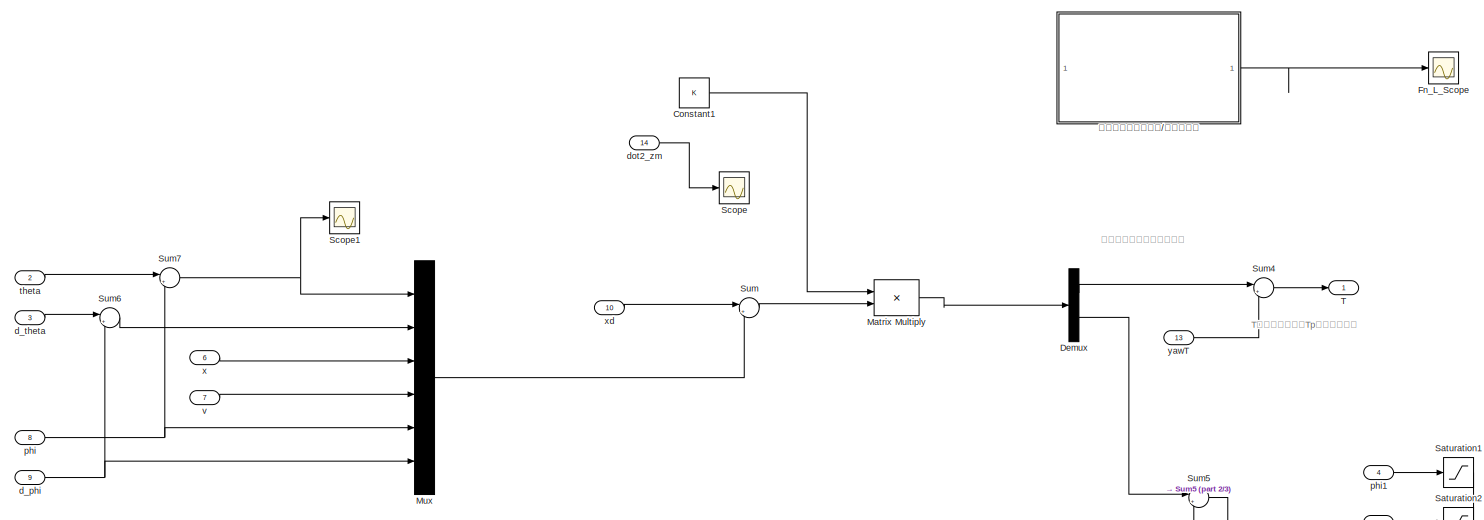
[diagram: 输出解算_R - part 1/3, top left region]
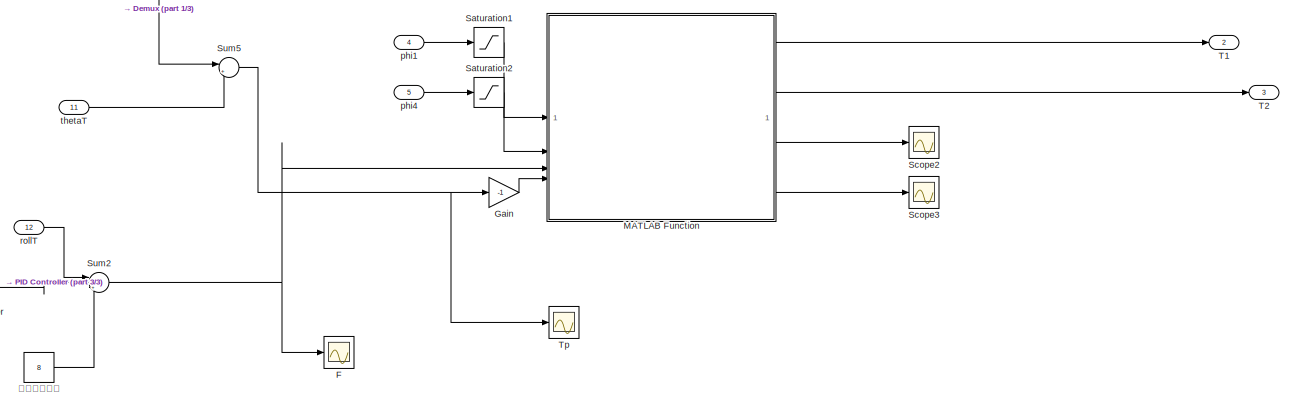
[diagram: 输出解算_R - part 2/3, bottom right region]
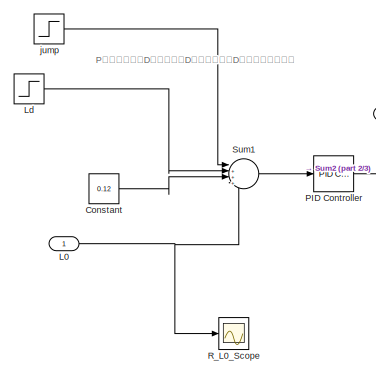
[diagram: 输出解算_R - part 3/3, bottom center region]
BLOCK [SubSystem] 输出解算_R
BLOCK [Constant] 输出解算_R/Constant
  Value = 0.12
BLOCK [Constant] 输出解算_R/Constant1
  Value = K
BLOCK [Demux] 输出解算_R/Demux
  Outputs = 2
BLOCK [Scope] 输出解算_R/F
  Floating = off
  NumInputPorts = 1
  ScopeSpecificationString = Simulink.scopes.TimeScopeBlockCfg('CurrentConfiguration', extmgr.ConfigurationSet(extmgr.Configuration('Core','General UI',true),extmgr.Configuration('Core','Source UI',true),extmgr.Configuration('Sources','WiredSimulink',true,'DataLoggingVariableName','ScopeData2'),extmgr.Configuration('Visuals','Time Domain',true,'SerializedDisplays',{struct('MinYLimReal','-378.16362','MaxYLimReal','307.88106','...<+1588ch>
BLOCK [Scope] 输出解算_R/Fn_L_Scope
  Floating = off
  NumInputPorts = 1
  ScopeSpecificationString = Simulink.scopes.TimeScopeBlockCfg('CurrentConfiguration', extmgr.ConfigurationSet(extmgr.Configuration('Core','General UI',true),extmgr.Configuration('Core','Source UI',true),extmgr.Configuration('Sources','WiredSimulink',true,'DataLoggingVariableName','ScopeData4'),extmgr.Configuration('Visuals','Time Domain',true,'SerializedDisplays',{struct('MinYLimReal','-171.23675','MaxYLimReal','308.43897','...<+1521ch>
BLOCK [Gain] 输出解算_R/Gain
  Gain = -1
BLOCK [Inport] 输出解算_R/L0
BLOCK [Step] 输出解算_R/Ld
  After = -0.08
  SampleTime = 0
  Time = 6.30
BLOCK [SubSystem] 输出解算_R/MATLAB Function
  ErrorFcn = Stateflow.Translate.translate
  PermitHierarchicalResolution = ExplicitOnly
  SFBlockType = MATLAB Function
  TreatAsAtomicUnit = on
BLOCK [Demux] 输出解算_R/MATLAB Function/ Demux 
  Outputs = 1
BLOCK [S-Function] 输出解算_R/MATLAB Function/ SFunction 
  EnableBusSupport = on
  FunctionName = sf_sfun
  PortCounts = [4 5]
  SFcnIsStateOwnerBlock = off
  SFunctionDeploymentMode = off
  Tag = Stateflow S-Function 6
BLOCK [Terminator] 输出解算_R/MATLAB Function/ Terminator 
BLOCK [Inport] 输出解算_R/MATLAB Function/F
  Port = 3
BLOCK [Outport] 输出解算_R/MATLAB Function/T1
BLOCK [Outport] 输出解算_R/MATLAB Function/T2
  Port = 2
BLOCK [Inport] 输出解算_R/MATLAB Function/Tp
  Port = 4
BLOCK [Outport] 输出解算_R/MATLAB Function/ph2
  Port = 3
BLOCK [Outport] 输出解算_R/MATLAB Function/ph3
  Port = 4
BLOCK [Inport] 输出解算_R/MATLAB Function/phi1
BLOCK [Inport] 输出解算_R/MATLAB Function/phi4
  Port = 2
BLOCK [Product] 输出解算_R/Matrix Multiply
  Multiplication = Matrix(*)
BLOCK [Mux] 输出解算_R/Mux
  DisplayOption = bar
  Inputs = 6
BLOCK [Reference] 输出解算_R/PID Controller  REF=slpidlib/PID Controller
  SourceBlock = slpidlib/PID Controller
  SourceType = PID 1dof
BLOCK [Scope] 输出解算_R/R_L0_Scope
  Floating = off
  NumInputPorts = 1
  ScopeSpecificationString = Simulink.scopes.TimeScopeBlockCfg('CurrentConfiguration', extmgr.ConfigurationSet(extmgr.Configuration('Core','General UI',true),extmgr.Configuration('Core','Source UI',true),extmgr.Configuration('Sources','WiredSimulink',true,'DataLoggingVariableName','ScopeData2'),extmgr.Configuration('Visuals','Time Domain',true,'SerializedDisplays',{struct('MinYLimReal','0.12501','MaxYLimReal','0.20834','YLabe...<+1522ch>
BLOCK [Saturate] 输出解算_R/Saturation1
  LowerLimit = 0
  UpperLimit = pi
BLOCK [Saturate] 输出解算_R/Saturation2
  LowerLimit = 0
  UpperLimit = pi
BLOCK [Scope] 输出解算_R/Scope
  Floating = off
  NumInputPorts = 1
  ScopeSpecificationString = Simulink.scopes.TimeScopeBlockCfg('CurrentConfiguration', extmgr.ConfigurationSet(extmgr.Configuration('Core','General UI',true),extmgr.Configuration('Core','Source UI',true),extmgr.Configuration('Sources','WiredSimulink',true,'DataLoggingVariableName','ScopeData3'),extmgr.Configuration('Visuals','Time Domain',true,'SerializedDisplays',{struct('MinYLimReal','-15.14547','MaxYLimReal','6.05405','YLa...<+1389ch>
BLOCK [Scope] 输出解算_R/Scope1
  Floating = off
  NumInputPorts = 1
  ScopeSpecificationString = Simulink.scopes.TimeScopeBlockCfg('CurrentConfiguration', extmgr.ConfigurationSet(extmgr.Configuration('Core','General UI',true),extmgr.Configuration('Core','Source UI',true),extmgr.Configuration('Sources','WiredSimulink',true,'DataLoggingVariableName','ScopeData2'),extmgr.Configuration('Visuals','Time Domain',true,'SerializedDisplays',{struct('MinYLimReal','-0.16095','MaxYLimReal','0.66048','YLab...<+1520ch>
BLOCK [Scope] 输出解算_R/Scope2
  Floating = off
  NumInputPorts = 1
  ScopeSpecificationString = Simulink.scopes.TimeScopeBlockCfg('CurrentConfiguration', extmgr.ConfigurationSet(extmgr.Configuration('Core','General UI',true),extmgr.Configuration('Core','Source UI',true),extmgr.Configuration('Sources','WiredSimulink',true,'DataLoggingVariableName','ScopeData2'),extmgr.Configuration('Visuals','Time Domain',true,'SerializedDisplays',{struct('MinYLimReal','0.29333','MaxYLimReal','0.66839','YLabe...<+1376ch>
BLOCK [Scope] 输出解算_R/Scope3
  Floating = off
  NumInputPorts = 1
  ScopeSpecificationString = Simulink.scopes.TimeScopeBlockCfg('CurrentConfiguration', extmgr.ConfigurationSet(extmgr.Configuration('Core','General UI',true),extmgr.Configuration('Core','Source UI',true),extmgr.Configuration('Sources','WiredSimulink',true,'DataLoggingVariableName','ScopeData3'),extmgr.Configuration('Visuals','Time Domain',true,'SerializedDisplays',{struct('MinYLimReal','2.47291','MaxYLimReal','2.85353','YLabe...<+1376ch>
BLOCK [Sum] 输出解算_R/Sum
  Inputs = |+-
BLOCK [Sum] 输出解算_R/Sum1
  Inputs = |+++-
BLOCK [Sum] 输出解算_R/Sum2
  Inputs = |+++
BLOCK [Sum] 输出解算_R/Sum4
  Inputs = |++
BLOCK [Sum] 输出解算_R/Sum5
  Inputs = |++
BLOCK [Sum] 输出解算_R/Sum6
  Inputs = |+-
BLOCK [Sum] 输出解算_R/Sum7
  Inputs = |+-
BLOCK [Outport] 输出解算_R/T
BLOCK [Outport] 输出解算_R/T1
  Port = 2
BLOCK [Outport] 输出解算_R/T2
  Port = 3
BLOCK [Scope] 输出解算_R/Tp
  Floating = off
  NumInputPorts = 1
  ScopeSpecificationString = Simulink.scopes.TimeScopeBlockCfg('CurrentConfiguration', extmgr.ConfigurationSet(extmgr.Configuration('Core','General UI',true),extmgr.Configuration('Core','Source UI',true),extmgr.Configuration('Sources','WiredSimulink',true,'DataLoggingVariableName','ScopeData1'),extmgr.Configuration('Visuals','Time Domain',true,'SerializedDisplays',{struct('MinYLimReal','-3.17011','MaxYLimReal','11.10391','YLa...<+1543ch>
BLOCK [Inport] 输出解算_R/d_phi
  Port = 9
BLOCK [Inport] 输出解算_R/d_theta
  Port = 3
BLOCK [Inport] 输出解算_R/dot2_zm
  Port = 14
BLOCK [Step] 输出解算_R/jump
  After = 0.08
  SampleTime = 0
  Time = 6.20
BLOCK [Inport] 输出解算_R/phi
  Port = 8
BLOCK [Inport] 输出解算_R/phi1
  Port = 4
BLOCK [Inport] 输出解算_R/phi4
  Port = 5
BLOCK [Inport] 输出解算_R/rollT
  Port = 12
BLOCK [Inport] 输出解算_R/theta
  Port = 2
BLOCK [Inport] 输出解算_R/thetaT
  Port = 11
BLOCK [Inport] 输出解算_R/v
  Port = 7
BLOCK [Inport] 输出解算_R/x
  Port = 6
BLOCK [Inport] 输出解算_R/xd
  Port = 10
BLOCK [Inport] 输出解算_R/yawT
  Port = 13
BLOCK [Constant] 输出解算_R/机体重量补偿
  Value = 8
BLOCK [SubSystem] 输出解算_R/离地检测（没算出来//没返回值）
  Commented = on
  ErrorFcn = Stateflow.Translate.translate
  PermitHierarchicalResolution = ExplicitOnly
  SFBlockType = MATLAB Function
  TreatAsAtomicUnit = on
BLOCK [Demux] 输出解算_R/离地检测（没算出来//没返回值）/ Demux 
  Outputs = 1
BLOCK [S-Function] 输出解算_R/离地检测（没算出来//没返回值）/ SFunction 
  EnableBusSupport = off
  FunctionName = sf_sfun
  PortCounts = [6 3]
  SFcnIsStateOwnerBlock = off
  SFunctionDeploymentMode = off
  Tag = Stateflow S-Function 8
BLOCK [Terminator] 输出解算_R/离地检测（没算出来//没返回值）/ Terminator 
BLOCK [Inport] 输出解算_R/离地检测（没算出来//没返回值）/F
  Port = 2
BLOCK [Outport] 输出解算_R/离地检测（没算出来//没返回值）/Fn
BLOCK [Inport] 输出解算_R/离地检测（没算出来//没返回值）/K
BLOCK [Outport] 输出解算_R/离地检测（没算出来//没返回值）/K_L
  Port = 2
BLOCK [Inport] 输出解算_R/离地检测（没算出来//没返回值）/L0
  Port = 5
BLOCK [Inport] 输出解算_R/离地检测（没算出来//没返回值）/Theta
  Port = 4
BLOCK [Inport] 输出解算_R/离地检测（没算出来//没返回值）/Tp
  Port = 3
BLOCK [Inport] 输出解算_R/离地检测（没算出来//没返回值）/dot2_zm
  Port = 6
ANNOTATION (root): roll补偿器
ANNOTATION (root): theta角补偿器
ANNOTATION (root): yaw补偿器
ANNOTATION (root): 中间量观测
ANNOTATION (root): 需要先在命令行运行 K=get_k_length(0.2)，算出K矩阵
ANNOTATION (root): theta_error是右边减左边
ANNOTATION (root): 用角度制观测是否正确，用弧度制计算。
ANNOTATION (root): 这里期望位移是轮速积分，会比机体速度积分出来的值大，因此x起到正向加速作用，实际不会这样写代码，实物以实际为准。
ANNOTATION (root): 右侧取负
ANNOTATION (root): 向左边转输出的yaw_T是正数
ANNOTATION 机体模型: 这里pitch的正方向取反了，修正之后是抬头为正数
ANNOTATION 机体模型: L1 = 0.25 L2 = 0.3 L3 = L2 L4 = L1 L5 = 0.1
ANNOTATION 机体模型: v=wr
ANNOTATION 机体模型: x=弧度*r
ANNOTATION 机体模型: 初始-45°
ANNOTATION 机体模型: 初始45°
ANNOTATION 机体模型: 宽总长0.3，关节电机间距为0.1，距离中心0.05
ANNOTATION 机体模型: 驱动力T
ANNOTATION 正运动学解算: ph0和theta的变化率刚好是相反数
ANNOTATION 正运动学解算: 用function计算L0
ANNOTATION 正运动学解算_R: ph0和theta的变化率刚好是相反数
ANNOTATION 正运动学解算_R: 用function计算L0
ANNOTATION 输出解算: P越大越弹性，D越大越硬，D大了才能跳，D小了只能丝滑收腿
ANNOTATION 输出解算: T是驱动轮输出，Tp对应关节电机
ANNOTATION 输出解算: 在空中轮毂电机速度会发散
ANNOTATION 输出解算_R: P越大越弹性，D越大越硬，D大了才能跳，D小了只能丝滑收腿
ANNOTATION 输出解算_R: T是驱动轮输出，Tp对应关节电机
ANNOTATION 输出解算_R: 在空中轮毂电机速度会发散
LINE Constant1:1 -> Sum5:1
LINE Constant:1 -> Sum4:1
LINE From10:1 -> theta_L_Scope:1
LINE From11:1 -> 输出解算:3
LINE From12:1 -> theta_R_Scope:1
LINE From13:1 -> 输出解算_R:2
LINE From14:1 -> T1_R_Scope:1
LINE From15:1 -> T2_R_Scope:1
LINE From16:1 -> T_R_Scope:1
LINE From17:1 -> T_L_Scope:1
LINE From18:1 -> T1_L_Scope:1
LINE From19:1 -> T2_L_Scope:1
LINE From1:1 -> 输出解算_R:13
LINE From20:1 -> 机体模型:4
LINE From21:1 -> 机体模型:5
LINE From22:1 -> 机体模型:6
LINE From23:1 -> 机体模型:2
LINE From24:1 -> 机体模型:3
LINE From25:1 -> 机体模型:1
LINE From26:1 -> 输出解算_R:7
LINE From27:1 -> 输出解算_R:6
LINE From28:1 -> 输出解算:6
LINE From29:1 -> 输出解算:5
LINE From2:1 -> 输出解算:13
LINE From31:1 -> v_L_Scope:1
LINE From33:1 -> v_R_Scope:1
LINE From34:1 -> 正运动学解算:2
LINE From35:1 -> 正运动学解算:1
LINE From36:1 -> 输出解算:11
LINE From37:1 -> 输出解算:10
LINE From38:1 -> 正运动学解算:3
LINE From39:1 -> 正运动学解算:4
LINE From3:1 -> Sum5:2
LINE From40:1 -> 正运动学解算_R:1
LINE From41:1 -> 正运动学解算_R:2
LINE From42:1 -> 正运动学解算_R:3
LINE From43:1 -> 正运动学解算_R:4
LINE From44:1 -> 输出解算_R:4
LINE From45:1 -> 输出解算_R:5
LINE From46:1 -> 输出解算_R:9
LINE From47:1 -> 输出解算:8
LINE From48:1 -> d_phi_Scope:1
LINE From49:1 -> 输出解算_R:8
LINE From4:1 -> 输出解算:2
LINE From50:1 -> 输出解算:7
LINE From51:1 -> d_theta_L_Scope:1
LINE From52:1 -> 输出解算:12
LINE From53:1 -> 输出解算:4
LINE From54:1 -> 输出解算_R:3
LINE From55:1 -> 输出解算_R:1
LINE From56:1 -> d_theta_R_Scope:1
LINE From57:1 -> L0_L_Scope:1
LINE From58:1 -> L0_R_Scope:1
LINE From59:1 -> x_L_Scope:1
LINE From5:1 -> 输出解算_R:12
LINE From60:1 -> x_R_Scope:1
LINE From61:1 -> phi_Scope:1
LINE From62:1 -> d_phi_Scope1:1
LINE From63:1 -> phi_Scope2:1
LINE From64:1 -> d_phi_Scope2:1
LINE From65:1 -> phi_Scope1:1
LINE From66:1 -> v_Scope:1
LINE From67:1 -> x_Scope:1
LINE From6:1 -> 输出解算:1
LINE From7:1 -> 输出解算_R:11
LINE From8:1 -> Sum3:1
LINE From9:1 -> Sum3:2
LINE From:1 -> Sum2:2
LINE Gain1:1 -> Goto13:1
LINE Gain2:1 -> Goto12:1
LINE Gain3:1 -> Goto2:1
LINE Gain4:1 -> Goto6:1
LINE Gain6:1 -> Goto4:1
LINE Gain:1 -> Goto14:1
LINE Integrator1:1 -> Mux:3
LINE Integrator3:1 -> Goto17:1
LINE Integrator:1 -> Mux1:3
LINE L_dphi_Step:1 -> Mux:6
LINE L_dtheta_Step:1 -> Mux:2
LINE L_phi_Step:1 -> Mux:5
LINE L_theta_Step:1 -> Mux:1
LINE L_v_Step:1 -> Sum:2
LINE L_v_Stepchange:1 -> Sum:1
LINE Mux1:1 -> 输出解算_R:10
LINE Mux:1 -> 输出解算:9
NET PID Controller1:1 -> Gain4:1, Goto7:1, thetaT_Scope:1
NET PID Controller2:1 -> Gain6:1, Goto5:1, rollT_Scope:1
NET PID Controller:1 -> Gain3:1, Goto1:1, yawT_Scope:1
LINE R_dphi_Step:1 -> Mux1:6
LINE R_dtheta_Step:1 -> Mux1:2
LINE R_phi_Step:1 -> Mux1:5
LINE R_theta_Step:1 -> Mux1:1
LINE R_v_Step:1 -> Sum1:2
LINE R_v_Stepchange:1 -> Sum1:1
LINE Saturation1:1 -> Goto15:1
LINE Saturation2:1 -> Gain2:1
LINE Saturation3:1 -> Gain:1
LINE Saturation4:1 -> Gain1:1
LINE Saturation5:1 -> Goto11:1
LINE Saturation6:1 -> Goto10:1
LINE Saturation:1 -> Goto31:1
LINE Step:1 -> Sum2:1
NET Sum1:1 -> Integrator:1, Mux1:4
LINE Sum2:1 -> PID Controller:1
LINE Sum3:1 -> Sum4:2
LINE Sum4:1 -> PID Controller1:1
LINE Sum5:1 -> PID Controller2:1
NET Sum:1 -> Integrator1:1, Mux:4
LINE 机体模型/Constant1:1 -> 机体模型/Sum1:1
LINE 机体模型/Constant2:1 -> 机体模型/Sum2:1
LINE 机体模型/Constant3:1 -> 机体模型/Sum4:1
LINE 机体模型/Constant4:1 -> 机体模型/Sum5:1
LINE 机体模型/Constant:1 -> 机体模型/Sum:1
LINE 机体模型/Gain10:1 -> 机体模型/Integrator:1
NET 机体模型/Gain11:1 -> 机体模型/Gain7:1, 机体模型/d_phi:1
LINE 机体模型/Gain12:1 -> 机体模型/phi1_right_Scope:1
LINE 机体模型/Gain13:1 -> 机体模型/phi4_right_Scope:1
NET 机体模型/Gain14:1 -> 机体模型/v_right:1, 机体模型/速度v_R:1
NET 机体模型/Gain15:1 -> 机体模型/x_right:1, 机体模型/位移x_R:1
LINE 机体模型/Gain1:1 -> 机体模型/phi4_scope:1
LINE 机体模型/Gain2:1 -> 机体模型/phi2:1
LINE 机体模型/Gain3:1 -> 机体模型/phi3:1
NET 机体模型/Gain4:1 -> 机体模型/v_left:1, 机体模型/速度v_L:1
NET 机体模型/Gain5:1 -> 机体模型/x_left:1, 机体模型/位移x_L:1
LINE 机体模型/Gain6:1 -> 机体模型/phi_Scope:1
LINE 机体模型/Gain7:1 -> 机体模型/phi_dot_Scope:1
NET 机体模型/Gain8:1 -> 机体模型/phi1_dot_left:1, 机体模型/phi1_dot_left_scope:1
NET 机体模型/Gain9:1 -> 机体模型/phi4_dot_left:1, 机体模型/phi4_dot_left_scope:1
LINE 机体模型/Gain:1 -> 机体模型/phi1_scope:1
NET 机体模型/Integrator1:1 -> 机体模型/yaw:1, 机体模型/yaw_Scope:1
NET 机体模型/Integrator2:1 -> 机体模型/roll:1, 机体模型/roll_Scope:1
NET 机体模型/Integrator:1 -> 机体模型/Gain6:1, 机体模型/phi:1
LINE 机体模型/PS-Simulink Converter10:1 -> 机体模型/Sum4:2
LINE 机体模型/PS-Simulink Converter11:1 -> 机体模型/Sum5:2
NET 机体模型/PS-Simulink Converter12:1 -> 机体模型/phi1_dot_right:1, 机体模型/phi1_dot_right_scope:1
NET 机体模型/PS-Simulink Converter13:1 -> 机体模型/phi4_dot_right:1, 机体模型/phi4_dot_right_Scope:1
LINE 机体模型/PS-Simulink Converter14:1 -> 机体模型/Gain14:1
LINE 机体模型/PS-Simulink Converter15:1 -> 机体模型/Gain15:1
LINE 机体模型/PS-Simulink Converter16:1 -> 机体模型/Integrator1:1
LINE 机体模型/PS-Simulink Converter17:1 -> 机体模型/Integrator2:1
LINE 机体模型/PS-Simulink Converter18:1 -> 机体模型/dot2_zm:1
NET 机体模型/PS-Simulink Converter19:1 -> 机体模型/Scope:1, 机体模型/v:1
LINE 机体模型/PS-Simulink Converter1:1 -> 机体模型/Sum1:2
LINE 机体模型/PS-Simulink Converter20:1 -> 机体模型/ax:1
LINE 机体模型/PS-Simulink Converter2:1 -> 机体模型/Sum2:3
LINE 机体模型/PS-Simulink Converter3:1 -> 机体模型/Sum3:2
LINE 机体模型/PS-Simulink Converter4:1 -> 机体模型/Gain4:1
LINE 机体模型/PS-Simulink Converter5:1 -> 机体模型/Gain5:1
LINE 机体模型/PS-Simulink Converter6:1 -> 机体模型/Gain10:1
LINE 机体模型/PS-Simulink Converter7:1 -> 机体模型/Gain11:1
LINE 机体模型/PS-Simulink Converter8:1 -> 机体模型/Gain9:1
LINE 机体模型/PS-Simulink Converter9:1 -> 机体模型/Gain8:1
NET 机体模型/PS-Simulink Converter:1 -> 机体模型/Sum2:2, 机体模型/Sum:2
NET 机体模型/Sum1:1 -> 机体模型/Gain1:1, 机体模型/Sum3:1, 机体模型/phi4_left:1
LINE 机体模型/Sum2:1 -> 机体模型/Gain2:1
LINE 机体模型/Sum3:1 -> 机体模型/Gain3:1
NET 机体模型/Sum4:1 -> 机体模型/Gain12:1, 机体模型/phi1_right:1
NET 机体模型/Sum5:1 -> 机体模型/Gain13:1, 机体模型/phi4_right:1
NET 机体模型/Sum:1 -> 机体模型/Gain:1, 机体模型/phi1_left:1
LINE 机体模型/T1_L:1 -> 机体模型/Simulink-PS Converter1:1
LINE 机体模型/T1_R:1 -> 机体模型/Simulink-PS Converter3:1
LINE 机体模型/T2_L:1 -> 机体模型/Simulink-PS Converter2:1
LINE 机体模型/T2_R:1 -> 机体模型/Simulink-PS Converter4:1
LINE 机体模型/T_L:1 -> 机体模型/Simulink-PS Converter:1
LINE 机体模型/T_R:1 -> 机体模型/Simulink-PS Converter5:1
LINE 机体模型:10 -> Goto:1
LINE 机体模型:11 -> Goto3:1
LINE 机体模型:12 -> Goto26:1
LINE 机体模型:13 -> Goto27:1
LINE 机体模型:14 -> Goto28:1
LINE 机体模型:15 -> Goto29:1
LINE 机体模型:16 -> Goto18:1
LINE 机体模型:17 -> Goto20:1
NET 机体模型:18 -> Goto16:1, Integrator3:1
LINE 机体模型:2 -> Goto23:1
LINE 机体模型:3 -> Goto22:1
LINE 机体模型:4 -> Goto19:1
LINE 机体模型:5 -> Goto21:1
LINE 机体模型:6 -> Goto24:1
LINE 机体模型:7 -> Goto25:1
LINE 机体模型:8 -> Goto30:1
LINE 机体模型:9 -> Saturation:1
NET 正运动学解算/Gain:1 -> 正运动学解算/d_theta:1, 正运动学解算/d_theta_Scope:1
LINE 正运动学解算/MATLAB Function1:1 -> 正运动学解算/Gain:1
LINE 正运动学解算/MATLAB Function:1 -> 正运动学解算/L0:1
NET 正运动学解算/MATLAB Function:2 -> 正运动学解算/theta:1, 正运动学解算/theta_Scope:1
LINE 正运动学解算/MATLAB Function:3 -> 正运动学解算/Scope:1
LINE 正运动学解算/d_phi1:1 -> 正运动学解算/MATLAB Function1:3
LINE 正运动学解算/d_phi4:1 -> 正运动学解算/MATLAB Function1:4
NET 正运动学解算/phi1:1 -> 正运动学解算/MATLAB Function1:1, 正运动学解算/MATLAB Function:1
NET 正运动学解算/phi4:1 -> 正运动学解算/MATLAB Function1:2, 正运动学解算/MATLAB Function:2
LINE 正运动学解算:1 -> Goto32:1
LINE 正运动学解算:2 -> Goto9:1
LINE 正运动学解算:3 -> Goto33:1
NET 正运动学解算_R/Gain:1 -> 正运动学解算_R/d_theta:1, 正运动学解算_R/d_theta_Scope:1
LINE 正运动学解算_R/MATLAB Function1:1 -> 正运动学解算_R/Gain:1
LINE 正运动学解算_R/MATLAB Function:1 -> 正运动学解算_R/L0:1
NET 正运动学解算_R/MATLAB Function:2 -> 正运动学解算_R/theta:1, 正运动学解算_R/theta_Scope:1
LINE 正运动学解算_R/MATLAB Function:3 -> 正运动学解算_R/Scope:1
LINE 正运动学解算_R/d_phi1:1 -> 正运动学解算_R/MATLAB Function1:3
LINE 正运动学解算_R/d_phi4:1 -> 正运动学解算_R/MATLAB Function1:4
NET 正运动学解算_R/phi1:1 -> 正运动学解算_R/MATLAB Function1:1, 正运动学解算_R/MATLAB Function:1
NET 正运动学解算_R/phi4:1 -> 正运动学解算_R/MATLAB Function1:2, 正运动学解算_R/MATLAB Function:2
LINE 正运动学解算_R:1 -> Goto34:1
LINE 正运动学解算_R:2 -> Goto8:1
LINE 正运动学解算_R:3 -> Goto35:1
LINE 输出解算/Constant1:1 -> 输出解算/Matrix Multiply:1
LINE 输出解算/Constant:1 -> 输出解算/Sum1:3
LINE 输出解算/Demux:1 -> 输出解算/Sum4:1
LINE 输出解算/Demux:2 -> 输出解算/Sum5:1
LINE 输出解算/Gain:1 -> 输出解算/MATLAB Function:4
NET 输出解算/L0:1 -> 输出解算/L_L0_Scope:1, 输出解算/Sum1:4
LINE 输出解算/Ld:1 -> 输出解算/Sum1:2
LINE 输出解算/MATLAB Function:1 -> 输出解算/T1:1
LINE 输出解算/MATLAB Function:2 -> 输出解算/T2:1
LINE 输出解算/MATLAB Function:3 -> 输出解算/Scope3:1
LINE 输出解算/Matrix Multiply:1 -> 输出解算/Demux:1
LINE 输出解算/Mux:1 -> 输出解算/Sum:2
LINE 输出解算/PID Controller:1 -> 输出解算/Sum2:2
LINE 输出解算/Saturation1:1 -> 输出解算/MATLAB Function:1
LINE 输出解算/Saturation2:1 -> 输出解算/MATLAB Function:2
LINE 输出解算/Sum1:1 -> 输出解算/PID Controller:1
NET 输出解算/Sum2:1 -> 输出解算/F:1, 输出解算/MATLAB Function:3
LINE 输出解算/Sum4:1 -> 输出解算/T:1
NET 输出解算/Sum5:1 -> 输出解算/Gain:1, 输出解算/Tp:1
NET 输出解算/Sum6:1 -> 输出解算/Mux:2, 输出解算/Scope2:1
NET 输出解算/Sum7:1 -> 输出解算/Mux:1, 输出解算/Scope1:1
LINE 输出解算/Sum:1 -> 输出解算/Matrix Multiply:2
NET 输出解算/d_phi:1 -> 输出解算/Mux:6, 输出解算/Sum6:2
LINE 输出解算/d_theta:1 -> 输出解算/Sum6:1
LINE 输出解算/jump:1 -> 输出解算/Sum1:1
LINE 输出解算/phi1:1 -> 输出解算/Saturation1:1
LINE 输出解算/phi4:1 -> 输出解算/Saturation2:1
NET 输出解算/phi:1 -> 输出解算/Mux:5, 输出解算/Sum7:2
LINE 输出解算/rollT:1 -> 输出解算/Sum2:1
LINE 输出解算/theta:1 -> 输出解算/Sum7:1
LINE 输出解算/thetaT:1 -> 输出解算/Sum5:2
LINE 输出解算/v:1 -> 输出解算/Mux:4
LINE 输出解算/x:1 -> 输出解算/Mux:3
LINE 输出解算/xd:1 -> 输出解算/Sum:1
LINE 输出解算/yawT:1 -> 输出解算/Sum4:2
LINE 输出解算/机体重量补偿:1 -> 输出解算/Sum2:3
LINE 输出解算:1 -> Saturation1:1
LINE 输出解算:2 -> Saturation3:1
LINE 输出解算:3 -> Saturation4:1
LINE 输出解算_R/Constant1:1 -> 输出解算_R/Matrix Multiply:1
LINE 输出解算_R/Constant:1 -> 输出解算_R/Sum1:3
LINE 输出解算_R/Demux:1 -> 输出解算_R/Sum4:1
LINE 输出解算_R/Demux:2 -> 输出解算_R/Sum5:1
LINE 输出解算_R/Gain:1 -> 输出解算_R/MATLAB Function:4
NET 输出解算_R/L0:1 -> 输出解算_R/R_L0_Scope:1, 输出解算_R/Sum1:4
LINE 输出解算_R/Ld:1 -> 输出解算_R/Sum1:2
LINE 输出解算_R/MATLAB Function:1 -> 输出解算_R/T1:1
LINE 输出解算_R/MATLAB Function:2 -> 输出解算_R/T2:1
LINE 输出解算_R/MATLAB Function:3 -> 输出解算_R/Scope2:1
LINE 输出解算_R/MATLAB Function:4 -> 输出解算_R/Scope3:1
LINE 输出解算_R/Matrix Multiply:1 -> 输出解算_R/Demux:1
LINE 输出解算_R/Mux:1 -> 输出解算_R/Sum:2
LINE 输出解算_R/PID Controller:1 -> 输出解算_R/Sum2:2
LINE 输出解算_R/Saturation1:1 -> 输出解算_R/MATLAB Function:1
LINE 输出解算_R/Saturation2:1 -> 输出解算_R/MATLAB Function:2
LINE 输出解算_R/Sum1:1 -> 输出解算_R/PID Controller:1
NET 输出解算_R/Sum2:1 -> 输出解算_R/F:1, 输出解算_R/MATLAB Function:3
LINE 输出解算_R/Sum4:1 -> 输出解算_R/T:1
NET 输出解算_R/Sum5:1 -> 输出解算_R/Gain:1, 输出解算_R/Tp:1
LINE 输出解算_R/Sum6:1 -> 输出解算_R/Mux:2
NET 输出解算_R/Sum7:1 -> 输出解算_R/Mux:1, 输出解算_R/Scope1:1
LINE 输出解算_R/Sum:1 -> 输出解算_R/Matrix Multiply:2
NET 输出解算_R/d_phi:1 -> 输出解算_R/Mux:6, 输出解算_R/Sum6:2
LINE 输出解算_R/d_theta:1 -> 输出解算_R/Sum6:1
LINE 输出解算_R/dot2_zm:1 -> 输出解算_R/Scope:1
LINE 输出解算_R/jump:1 -> 输出解算_R/Sum1:1
LINE 输出解算_R/phi1:1 -> 输出解算_R/Saturation1:1
LINE 输出解算_R/phi4:1 -> 输出解算_R/Saturation2:1
NET 输出解算_R/phi:1 -> 输出解算_R/Mux:5, 输出解算_R/Sum7:2
LINE 输出解算_R/rollT:1 -> 输出解算_R/Sum2:1
LINE 输出解算_R/theta:1 -> 输出解算_R/Sum7:1
LINE 输出解算_R/thetaT:1 -> 输出解算_R/Sum5:2
LINE 输出解算_R/v:1 -> 输出解算_R/Mux:4
LINE 输出解算_R/x:1 -> 输出解算_R/Mux:3
LINE 输出解算_R/xd:1 -> 输出解算_R/Sum:1
LINE 输出解算_R/yawT:1 -> 输出解算_R/Sum4:2
LINE 输出解算_R/机体重量补偿:1 -> 输出解算_R/Sum2:3
LINE 输出解算_R/离地检测（没算出来//没返回值）:1 -> 输出解算_R/Fn_L_Scope:1
LINE 输出解算_R:1 -> Saturation2:1
LINE 输出解算_R:2 -> Saturation5:1
LINE 输出解算_R:3 -> Saturation6:1
PLINE 机体模型/6-DOF Joint:LConn1 -- 机体模型/Rigid Transform:RConn1
PLINE 机体模型/6-DOF Joint:RConn1 -- 机体模型/Rigid Transform1:LConn1
PNET net1: 机体模型/Body:LConn1 -- 机体模型/Joint_right_back_Frame:LConn1 -- 机体模型/Joint_right_front_Frame:LConn1
PNET net2: 机体模型/Body:LConn2 -- 机体模型/Joint_left_back_Frame:LConn1 -- 机体模型/Joint_left_front_Frame:LConn1
PNET net3: 机体模型/Body:RConn1 -- 机体模型/Rigid Transform3:RConn1 -- 机体模型/Transform Sensor:RConn1
PLINE 机体模型/Brick Solid:LConn1 -- 机体模型/Rigid Transform6:RConn1
PNET net4: 机体模型/Brick Solid:LConn2 -- 机体模型/Spatial Contact Force12:LConn1 -- 机体模型/Spatial Contact Force13:LConn1
PNET net5: 机体模型/Ground:LConn1 -- 机体模型/Spatial Contact Force1:LConn1 -- 机体模型/Spatial Contact Force:LConn1
PNET net6: 机体模型/Ground:RConn1 -- 机体模型/Mechanism Configuration:RConn1 -- 机体模型/Rigid Transform10:LConn1 -- 机体模型/Rigid Transform12:LConn1 -- 机体模型/Rigid Transform13:LConn1 -- 机体模型/Rigid Transform2:LConn1 -- 机体模型/Rigid Transform6:LConn1 -- 机体模型/Rigid Transform7:LConn1 -- 机体模型/Rigid Transform9:LConn1 -- 机体模型/Rigid Transform:LConn1 -- 机体模型/Solver Configuration:RConn1 -- 机体模型/Transform Sensor:LConn1 -- 机体模型/World Frame:RConn1
PLINE 机体模型/Joint_left_back:LConn1 -- 机体模型/Joint_left_back_Frame:RConn1
PLINE 机体模型/Joint_left_back:RConn1 -- 机体模型/Joint_left_back_legup:LConn1
PLINE 机体模型/Joint_left_back_legmiddle:LConn1 -- 机体模型/Leg_left_back_up:RConn1
PLINE 机体模型/Joint_left_back_legmiddle:RConn1 -- 机体模型/Leg_left_back_down:LConn1
PLINE 机体模型/Joint_left_back_legmiddle:RConn2 -- 机体模型/PS-Simulink Converter3:LConn1
PLINE 机体模型/Joint_left_back_legup:LConn2 -- 机体模型/Simulink-PS Converter2:RConn1
PLINE 机体模型/Joint_left_back_legup:RConn1 -- 机体模型/Leg_left_back_up:LConn1
PLINE 机体模型/Joint_left_back_legup:RConn2 -- 机体模型/PS-Simulink Converter1:LConn1
PLINE 机体模型/Joint_left_back_legup:RConn3 -- 机体模型/PS-Simulink Converter8:LConn1
PLINE 机体模型/Joint_left_front:LConn1 -- 机体模型/Joint_left_front_Frame:RConn1
PLINE 机体模型/Joint_left_front:RConn1 -- 机体模型/Joint_left_front_legup:LConn1
PLINE 机体模型/Joint_left_front_legmiddle:LConn1 -- 机体模型/Leg_left_front_up:RConn1
PLINE 机体模型/Joint_left_front_legmiddle:RConn1 -- 机体模型/Leg_left_front_down:LConn1
PLINE 机体模型/Joint_left_front_legmiddle:RConn2 -- 机体模型/PS-Simulink Converter2:LConn1
PLINE 机体模型/Joint_left_front_legup:LConn2 -- 机体模型/Simulink-PS Converter1:RConn1
PLINE 机体模型/Joint_left_front_legup:RConn1 -- 机体模型/Leg_left_front_up:LConn1
PLINE 机体模型/Joint_left_front_legup:RConn2 -- 机体模型/PS-Simulink Converter:LConn1
PLINE 机体模型/Joint_left_front_legup:RConn3 -- 机体模型/PS-Simulink Converter9:LConn1
PNET net7: 机体模型/Joint_left_wheel:LConn1 -- 机体模型/Leg_left_front_down:RConn1 -- 机体模型/Revolute Joint:RConn1
PLINE 机体模型/Joint_left_wheel:LConn2 -- 机体模型/Simulink-PS Converter:RConn1
PLINE 机体模型/Joint_left_wheel:RConn1 -- 机体模型/Left_wheel:RConn1
PLINE 机体模型/Joint_left_wheel:RConn2 -- 机体模型/PS-Simulink Converter5:LConn1
PLINE 机体模型/Joint_left_wheel:RConn3 -- 机体模型/PS-Simulink Converter4:LConn1
PLINE 机体模型/Joint_right_back:LConn1 -- 机体模型/Joint_right_back_Frame:RConn1
PLINE 机体模型/Joint_right_back:RConn1 -- 机体模型/Joint_right_back_legup:LConn1
PLINE 机体模型/Joint_right_back_legmiddle:LConn1 -- 机体模型/Leg_right_back_up:RConn1
PLINE 机体模型/Joint_right_back_legmiddle:RConn1 -- 机体模型/Leg_right_back_down:LConn1
PLINE 机体模型/Joint_right_back_legup:LConn2 -- 机体模型/Simulink-PS Converter4:RConn1
PLINE 机体模型/Joint_right_back_legup:RConn1 -- 机体模型/Leg_right_back_up:LConn1
PLINE 机体模型/Joint_right_back_legup:RConn2 -- 机体模型/PS-Simulink Converter11:LConn1
PLINE 机体模型/Joint_right_back_legup:RConn3 -- 机体模型/PS-Simulink Converter13:LConn1
PLINE 机体模型/Joint_right_front:LConn1 -- 机体模型/Joint_right_front_Frame:RConn1
PLINE 机体模型/Joint_right_front:RConn1 -- 机体模型/Joint_right_front_legup:LConn1
PLINE 机体模型/Joint_right_front_legmiddle:LConn1 -- 机体模型/Leg_right_front_up:RConn1
PLINE 机体模型/Joint_right_front_legmiddle:RConn1 -- 机体模型/Leg_right_front_down1:LConn1
PLINE 机体模型/Joint_right_front_legup:LConn2 -- 机体模型/Simulink-PS Converter3:RConn1
PLINE 机体模型/Joint_right_front_legup:RConn1 -- 机体模型/Leg_right_front_up:LConn1
PLINE 机体模型/Joint_right_front_legup:RConn2 -- 机体模型/PS-Simulink Converter10:LConn1
PLINE 机体模型/Joint_right_front_legup:RConn3 -- 机体模型/PS-Simulink Converter12:LConn1
PNET net8: 机体模型/Joint_right_wheel:LConn1 -- 机体模型/Leg_right_front_down1:RConn1 -- 机体模型/Transform_right_wheel Joint:RConn1
PLINE 机体模型/Joint_right_wheel:LConn2 -- 机体模型/Simulink-PS Converter5:RConn1
PLINE 机体模型/Joint_right_wheel:RConn1 -- 机体模型/Right_wheel:RConn1
PLINE 机体模型/Joint_right_wheel:RConn2 -- 机体模型/PS-Simulink Converter15:LConn1
PLINE 机体模型/Joint_right_wheel:RConn3 -- 机体模型/PS-Simulink Converter14:LConn1
PNET net9: 机体模型/Left_wheel:LConn1 -- 机体模型/Spatial Contact Force10:RConn1 -- 机体模型/Spatial Contact Force12:RConn1 -- 机体模型/Spatial Contact Force14:RConn1 -- 机体模型/Spatial Contact Force2:RConn1 -- 机体模型/Spatial Contact Force4:RConn1 -- 机体模型/Spatial Contact Force6:RConn1 -- 机体模型/Spatial Contact Force8:RConn1 -- 机体模型/Spatial Contact Force:RConn1
PLINE 机体模型/Leg_left_back_down:RConn1 -- 机体模型/Revolute Joint:LConn1
PLINE 机体模型/Leg_right_back_down:RConn1 -- 机体模型/Transform_right_wheel Joint:LConn1
PLINE 机体模型/PS-Simulink Converter16:LConn1 -- 机体模型/Transform Sensor:RConn4
PLINE 机体模型/PS-Simulink Converter17:LConn1 -- 机体模型/Transform Sensor:RConn2
PLINE 机体模型/PS-Simulink Converter18:LConn1 -- 机体模型/Transform Sensor:RConn7
PLINE 机体模型/PS-Simulink Converter19:LConn1 -- 机体模型/Transform Sensor:RConn5
PLINE 机体模型/PS-Simulink Converter20:LConn1 -- 机体模型/Transform Sensor:RConn6
PNET net10: 机体模型/PS-Simulink Converter6:LConn1 -- 机体模型/PS-Simulink Converter7:LConn1 -- 机体模型/Transform Sensor:RConn3
PNET net11: 机体模型/Right_wheel:LConn1 -- 机体模型/Spatial Contact Force11:RConn1 -- 机体模型/Spatial Contact Force13:RConn1 -- 机体模型/Spatial Contact Force15:RConn1 -- 机体模型/Spatial Contact Force1:RConn1 -- 机体模型/Spatial Contact Force3:RConn1 -- 机体模型/Spatial Contact Force5:RConn1 -- 机体模型/Spatial Contact Force7:RConn1 -- 机体模型/Spatial Contact Force9:RConn1
PLINE 机体模型/Rigid Transform10:RConn1 -- 机体模型/斜坡4:RConn1
PLINE 机体模型/Rigid Transform12:RConn1 -- 机体模型/斜坡5:RConn1
PLINE 机体模型/Rigid Transform13:RConn1 -- 机体模型/斜坡6:RConn1
PLINE 机体模型/Rigid Transform1:RConn1 -- 机体模型/Rigid Transform3:LConn1
PLINE 机体模型/Rigid Transform2:RConn1 -- 机体模型/斜坡:RConn1
PLINE 机体模型/Rigid Transform7:RConn1 -- 机体模型/斜坡1:RConn1
PLINE 机体模型/Rigid Transform9:RConn1 -- 机体模型/斜坡3:RConn1
PNET net12: 机体模型/Spatial Contact Force10:LConn1 -- 机体模型/Spatial Contact Force11:LConn1 -- 机体模型/斜坡1:LConn1
PNET net13: 机体模型/Spatial Contact Force14:LConn1 -- 机体模型/Spatial Contact Force15:LConn1 -- 机体模型/斜坡:LConn1
PNET net14: 机体模型/Spatial Contact Force2:LConn1 -- 机体模型/Spatial Contact Force3:LConn1 -- 机体模型/斜坡6:LConn1
PNET net15: 机体模型/Spatial Contact Force4:LConn1 -- 机体模型/Spatial Contact Force5:LConn1 -- 机体模型/斜坡5:LConn1
PNET net16: 机体模型/Spatial Contact Force6:LConn1 -- 机体模型/Spatial Contact Force7:LConn1 -- 机体模型/斜坡4:LConn1
PNET net17: 机体模型/Spatial Contact Force8:LConn1 -- 机体模型/Spatial Contact Force9:LConn1 -- 机体模型/斜坡3:LConn1
note: NET lines group one-source signal fan-out (src -> all destinations, sorted); 1:1 wires keep LINE; PNET lines group multi-terminal physical nets as a canonical sorted terminal list (undirected conserving connections); 2-terminal nets keep the pairwise PLINE form
CHART 正运动学解算/MATLAB Function1 states=1 transitions=1
  STATE_LABEL 'eML_blk_kernel()'
  STATE_LABEL 'SCRIPT:\nfunction d_phi0 = fcn(phi_1,phi_4,d_phi1,d_phi4)\n\nL1 = 0.0725;\nL2 = 0.16;\nL3 = L2;\nL4 = L1;\nL5 = 0.08;\n\n    l5=L5;\n    l1=L1;\n    l2=L2;\n    l3=L3;\n    l4=L4;\n    d_phi0 = (d_phi1*((l1*cos(phi_1) + (2*l2*cos(2*atan(((4*l2^2*(l1*sin(phi_1) - l4*sin(phi_4))^2 - ((l1*sin(phi_1) - l4*sin(phi_4))^2 + (l5 - l1*cos(phi_1) + l4*cos(phi_4))^2 + l2^2 - l3^2)^2 + 4*l2^2*(l5 - l1*cos(phi_1) + l4*cos(p...<+3608ch>'
CHART 正运动学解算/MATLAB Function states=1 transitions=1
  STATE_LABEL 'eML_blk_kernel()'
  STATE_LABEL 'SCRIPT:\nfunction [L0,theta0,ph2] = fcn(phi1,phi4)\n\nL1 = 0.0725;\nL2 = 0.16;\nL3 = L2;\nL4 = L1;\nL5 = 0.08;\nph1 = phi1;\nph4 = phi4;\n\nxb=L1*cos(ph1);\nyb=L1*sin(ph1);\nxd=L5+L4*cos(ph4);\nyd=L4*sin(ph4);\n\nA0 = 2*L2*(xd-xb);\nB0 = 2*L2*(yd-yb);\nLBD_2 = (xd-xb)^2 + (yd-yb)^2; \nC0 = L2^2 - L3^2 + LBD_2;\n\n% ph2_first = 2*atan( (B0+sqrt(A0^2+B0^2-C0^2)) / (C0+A0) );\n% ph2_second = 2*atan( (B0-sqrt(A0^2+B0^2-C0^...<+411ch>'
CHART 输出解算/MATLAB Function states=1 transitions=1
  STATE_LABEL 'eML_blk_kernel()'
  STATE_LABEL 'SCRIPT:\nfunction [T1,T2,ph0] = fcn(phi1,phi4,F,Tp)\n\nL1 = 0.0725;\nL2 = 0.16;\nL3 = L2;\nL4 = L1;\nL5 = 0.08;\n\nph1 = phi1;\nph4 = phi4;\n\nxb=L1*cos(ph1);\nyb=L1*sin(ph1);\nxd=L5+L4*cos(ph4);\nyd=L4*sin(ph4);\n\nA0 = 2*L2*(xd-xb);\nB0 = 2*L2*(yd-yb);\nLBD_2 = (xd-xb)^2 + (yd-yb)^2; \nC0 = L2^2 - L3^2 + LBD_2;\n\n% ph2_first = 2*atan( (B0+sqrt(A0^2+B0^2-C0^2)) / (C0+A0) );\n% ph2_second = 2*atan( (B0-sqrt(A0^2+B0^2-C...<+611ch>'
CHART 正运动学解算_R/MATLAB Function states=1 transitions=1
  STATE_LABEL 'eML_blk_kernel()'
  STATE_LABEL 'SCRIPT:\nfunction [L0,theta0,ph2] = fcn(phi1,phi4)\n\nL1 = 0.0725;\nL2 = 0.16;\nL3 = L2;\nL4 = L1;\nL5 = 0.08;\nph1 = phi1;\nph4 = phi4;\n\n\nxb=L1*cos(ph1);\nyb=L1*sin(ph1);\nxd=L5+L4*cos(ph4);\nyd=L4*sin(ph4);\n\nA0 = 2*L2*(xd-xb);\nB0 = 2*L2*(yd-yb);\nLBD_2 = (xd-xb)^2 + (yd-yb)^2; \nC0 = L2^2 - L3^2 + LBD_2;\n\n% ph2_first = 2*atan( (B0+sqrt(A0^2+B0^2-C0^2)) / (C0+A0) );\n% ph2_second = 2*atan( (B0-sqrt(A0^2+B0^2-C0...<+412ch>'
CHART 正运动学解算_R/MATLAB Function1 states=1 transitions=1
  STATE_LABEL 'eML_blk_kernel()'
  STATE_LABEL 'SCRIPT:\nfunction d_phi0 = fcn(phi_1,phi_4,d_phi1,d_phi4)\n\nL1 = 0.0725;\nL2 = 0.16;\nL3 = L2;\nL4 = L1;\nL5 = 0.08;\n\n    l5=L5;\n    l1=L1;\n    l2=L2;\n    l3=L3;\n    l4=L4;\n    d_phi0 = (d_phi1*((l1*cos(phi_1) + (2*l2*cos(2*atan(((4*l2^2*(l1*sin(phi_1) - l4*sin(phi_4))^2 - ((l1*sin(phi_1) - l4*sin(phi_4))^2 + (l5 - l1*cos(phi_1) + l4*cos(phi_4))^2 + l2^2 - l3^2)^2 + 4*l2^2*(l5 - l1*cos(phi_1) + l4*cos(p...<+3608ch>'
CHART 输出解算_R/MATLAB Function states=1 transitions=1
  STATE_LABEL 'eML_blk_kernel()'
  STATE_LABEL 'SCRIPT:\nfunction [T1,T2,ph2,ph3] = fcn(phi1,phi4,F,Tp)\n\nL1 = 0.0725;\nL2 = 0.16;\nL3 = L2;\nL4 = L1;\nL5 = 0.08;\n\nph1 = phi1;\nph4 = phi4;\n\nxb=L1*cos(ph1);\nyb=L1*sin(ph1);\nxd=L5+L4*cos(ph4);\nyd=L4*sin(ph4);\n\nA0 = 2*L2*(xd-xb);\nB0 = 2*L2*(yd-yb);\nLBD_2 = (xd-xb)^2 + (yd-yb)^2; \nC0 = L2^2 - L3^2 + LBD_2;\n\n% ph2_first = 2*atan( (B0+sqrt(A0^2+B0^2-C0^2)) / (C0+A0) );\n% ph2_second = 2*atan( (B0-sqrt(A0^2+B0...<+615ch>'
CHART 输出解算_R/离地检测（没算出来//没返回值） states=1 transitions=1
  STATE_LABEL 'eML_blk_kernel()'
  STATE_LABEL 'SCRIPT:\nfunction [Fn,K_L] = fcn(K,F,Tp,Theta,L0,dot2_zm)\n\n%向上为正方向\ng=9.8;\nmw=1;\n\n%F和Tp用实际T1,T2,T来解算的出最佳，但也可以用期望输入(收敛稳定时)\nP=F.*cos(Theta)+Tp.*sin(Theta)/L0;\ndot2_zw = dot2_zm;\n% dot2_zw = dot2_zm - dot2_L0.*cos(Theta) + 2.*dot_L0.*dot_Theta.*sin(Theta) + L0.*dot2_Theta.*sin(Theta) + L0.*dot_L0.*dot_L0.*cos(Theta);\n\nFn = P+mw.*g+mw.*dot2_zw;\nK_L = zeros(2,6);\nif(Fn>-100)\n    K_L(2,1) = K(2,1);\n    K_...<+50ch>'
CHART  states=0 transitions=0
CHART  states=0 transitions=0
CHART  states=0 transitions=0
CHART  states=0 transitions=0
CHART  states=0 transitions=0
CHART  states=0 transitions=0
CHART  states=0 transitions=0
